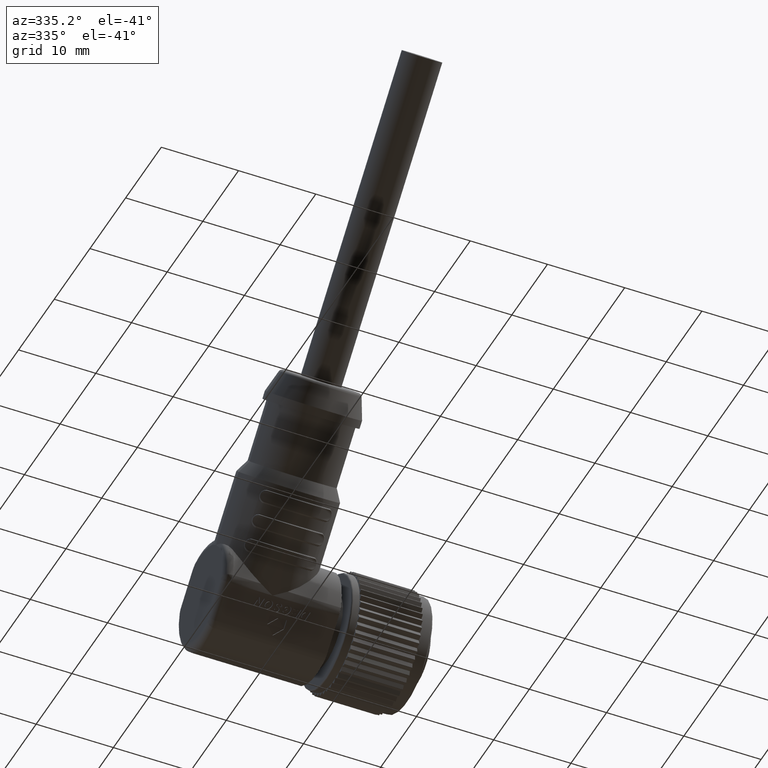
[diagram: clean part render]
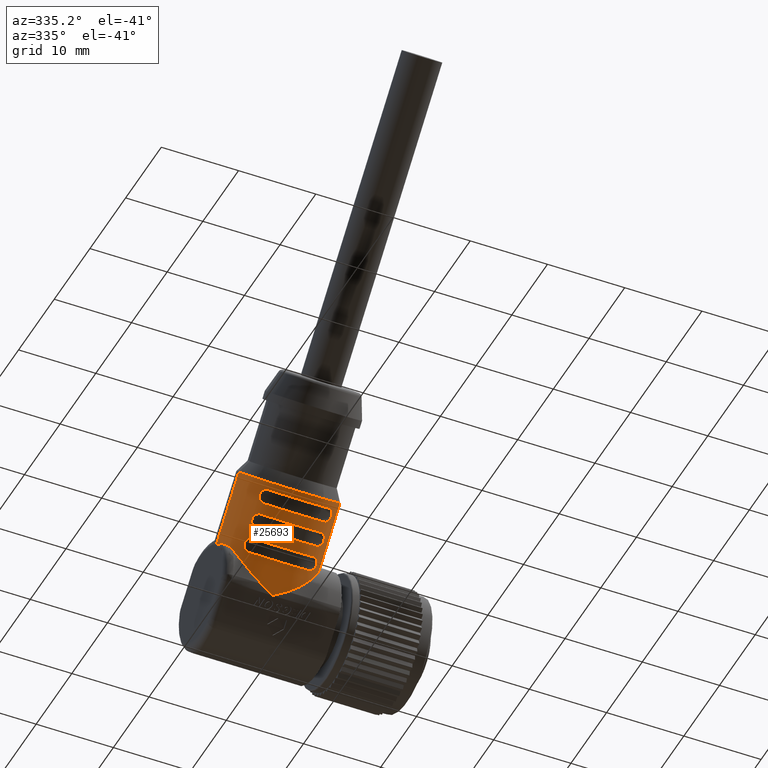
[diagram: same view with one face highlighted and labeled with its STEP entity id]
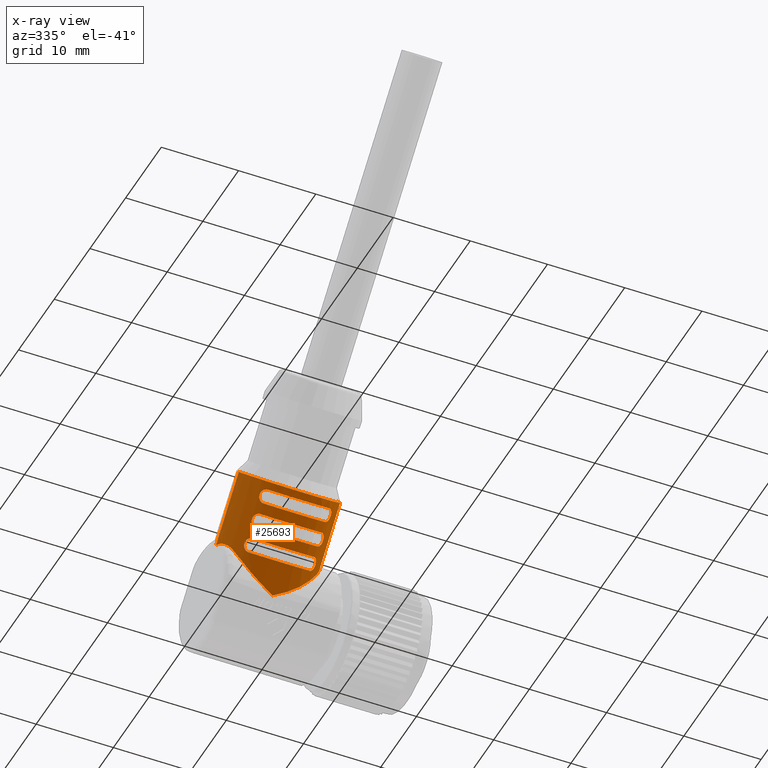
[diagram: x-ray of the same camera — body ghosted, the highlighted face saturated]
A machine part, auxiliary view. The second image highlights one B-rep face of the part: STEP entity #25693.
The next image is the same camera in x-ray: the body ghosted, the highlighted face saturated — about 0% of this face is hidden behind the body in this view.
In plain terms, the highlighted cylindrical surface (partial cylindrical patch) has radius 6.4 mm, axis along (0, -0.7071, 0.7071).
Its self-contained STEP definition (entity closure, byte-faithful):
#2044=CARTESIAN_POINT('',(-2.79E1,-4.242640687119E0,4.242640687119E0));
#2112=DIRECTION('',(0.E0,7.071067811865E-1,-7.071067811865E-1));
#2113=VECTOR('',#2112,8.E0);
#2114=CARTESIAN_POINT('',(-1.51E1,-1.060660171780E1,1.060660171780E1));
#2115=LINE('',#2114,#2113);
#2754=CARTESIAN_POINT('',(-1.976379701098E1,-6.706777559434E0,
-2.004777984785E0));
#2755=CARTESIAN_POINT('',(-1.973033856234E1,-6.712463786858E0,
-1.985755298594E0));
#2756=CARTESIAN_POINT('',(-1.966233595879E1,-6.724124667185E0,
-1.946156399835E0));
#2757=CARTESIAN_POINT('',(-1.955718266924E1,-6.742392910661E0,
-1.881949639870E0));
#2758=CARTESIAN_POINT('',(-1.944887882360E1,-6.761351361769E0,
-1.812723820941E0));
#2759=CARTESIAN_POINT('',(-1.933754368501E1,-6.780873938020E0,
-1.738347658582E0));
#2760=CARTESIAN_POINT('',(-1.922336505931E1,-6.800804039518E0,
-1.658749583493E0));
#2761=CARTESIAN_POINT('',(-1.910662043044E1,-6.820952101132E0,
-1.573941641904E0));
#2762=CARTESIAN_POINT('',(-1.898766903999E1,-6.841099862637E0,
-1.484025695513E0));
#2763=CARTESIAN_POINT('',(-1.886694269942E1,-6.861006467833E0,
-1.389196742230E0));
#2764=CARTESIAN_POINT('',(-1.874492663820E1,-6.880417517636E0,
-1.289736465142E0));
#2765=CARTESIAN_POINT('',(-1.862213625987E1,-6.899075379999E0,
-1.185999789848E0));
#2766=CARTESIAN_POINT('',(-1.849909188646E1,-6.916729589994E0,
-1.078395611047E0));
#2767=CARTESIAN_POINT('',(-1.837629576510E1,-6.933145889192E0,
-9.673652714583E-1));
#2768=CARTESIAN_POINT('',(-1.825421398133E1,-6.948113007215E0,
-8.533619134181E-1));
#2769=CARTESIAN_POINT('',(-1.813326376595E1,-6.961446923063E0,
-7.368322769946E-1));
#2770=CARTESIAN_POINT('',(-1.801380702498E1,-6.972992604571E0,
-6.182029272259E-1));
#2771=CARTESIAN_POINT('',(-1.789614941929E1,-6.982623687278E0,
-4.978714963514E-1));
#2772=CARTESIAN_POINT('',(-1.778054284768E1,-6.990240781358E0,
-3.762017329391E-1));
#2773=CARTESIAN_POINT('',(-1.766719031149E1,-6.995768932287E0,
-2.535218498986E-1));
#2774=CARTESIAN_POINT('',(-1.755625177515E1,-6.999154715492E0,
-1.301250159123E-1));
#2775=CARTESIAN_POINT('',(-1.744785031065E1,-7.000363276822E0,
-6.271289501332E-3));
#2776=CARTESIAN_POINT('',(-1.734207792223E1,-6.999375524912E0,
1.178097250432E-1));
#2777=CARTESIAN_POINT('',(-1.723900081743E1,-6.996185579647E0,
2.419158980580E-1));
#2778=CARTESIAN_POINT('',(-1.713866398342E1,-6.990798520440E0,
3.658695919302E-1));
#2779=CARTESIAN_POINT('',(-1.704109507672E1,-6.983228436707E0,
4.895148275227E-1));
#2780=CARTESIAN_POINT('',(-1.694630766091E1,-6.973496760627E0,
6.127147046613E-1));
#2781=CARTESIAN_POINT('',(-1.685430386462E1,-6.961630850028E0,
7.353491178457E-1));
#2782=CARTESIAN_POINT('',(-1.676507656609E1,-6.947662789498E0,
8.573127401697E-1));
#2783=CARTESIAN_POINT('',(-1.667861116400E1,-6.931628376421E0,
9.785132842144E-1));
#2784=CARTESIAN_POINT('',(-1.659488697655E1,-6.913566249684E0,
1.098870065599E0));
#2785=CARTESIAN_POINT('',(-1.651387858432E1,-6.893517196915E0,
1.218312468253E0));
#2786=CARTESIAN_POINT('',(-1.643555669136E1,-6.871523523800E0,
1.336778960287E0));
#2787=CARTESIAN_POINT('',(-1.635988894890E1,-6.847628536869E0,
1.454216076949E0));
#2788=CARTESIAN_POINT('',(-1.628684061225E1,-6.821876099910E0,
1.570577570572E0));
#2789=CARTESIAN_POINT('',(-1.621637509501E1,-6.794310257425E0,
1.685823657316E0));
#2790=CARTESIAN_POINT('',(-1.614845443175E1,-6.764974913375E0,
1.799920358396E0));
#2791=CARTESIAN_POINT('',(-1.608303966883E1,-6.733913557210E0,
1.912838918037E0));
#2792=CARTESIAN_POINT('',(-1.602009119752E1,-6.701169030712E0,
2.024555285489E0));
#2793=CARTESIAN_POINT('',(-1.595956903984E1,-6.666783330045E0,
2.135049651290E0));
#2794=CARTESIAN_POINT('',(-1.590143309508E1,-6.630797438156E0,
2.244306030587E0));
#2795=CARTESIAN_POINT('',(-1.584564335171E1,-6.593251181884E0,
2.352311890846E0));
#2796=CARTESIAN_POINT('',(-1.579216008060E1,-6.554183118123E0,
2.459057797457E0));
#2797=CARTESIAN_POINT('',(-1.574094397411E1,-6.513630417298E0,
2.564537151669E0));
#2798=CARTESIAN_POINT('',(-1.569195628741E1,-6.471628771411E0,
2.668745920588E0));
#2799=CARTESIAN_POINT('',(-1.564515904165E1,-6.428212393799E0,
2.771682213927E0));
#2800=CARTESIAN_POINT('',(-1.560051507056E1,-6.383413917971E0,
2.873346176132E0));
#2801=CARTESIAN_POINT('',(-1.555798813714E1,-6.337264369985E0,
2.973739730360E0));
#2802=CARTESIAN_POINT('',(-1.551754301897E1,-6.289793136532E0,
3.072866379460E0));
#2803=CARTESIAN_POINT('',(-1.547914558890E1,-6.241027946222E0,
3.170731011288E0));
#2804=CARTESIAN_POINT('',(-1.544276288519E1,-6.190994857434E0,
3.267339721385E0));
#2805=CARTESIAN_POINT('',(-1.540836317573E1,-6.139718255718E0,
3.362699643124E0));
#2806=CARTESIAN_POINT('',(-1.537591601389E1,-6.087220856003E0,
3.456818792404E0));
#2807=CARTESIAN_POINT('',(-1.534539228866E1,-6.033523710846E0,
3.549705921427E0));
#2808=CARTESIAN_POINT('',(-1.531676426995E1,-5.978646225732E0,
3.641370378621E0));
#2809=CARTESIAN_POINT('',(-1.529000564568E1,-5.922606171495E0,
3.731821988579E0));
#2810=CARTESIAN_POINT('',(-1.526509156333E1,-5.865419721198E0,
3.821070907492E0));
#2811=CARTESIAN_POINT('',(-1.524199864042E1,-5.807101426510E0,
3.909127584593E0));
#2812=CARTESIAN_POINT('',(-1.522070501132E1,-5.747664278394E0,
3.996002597381E0));
#2813=CARTESIAN_POINT('',(-1.520119036767E1,-5.687119794202E0,
4.081706473118E0));
#2814=CARTESIAN_POINT('',(-1.518343595325E1,-5.625477987538E0,
4.166249690395E0));
#2815=CARTESIAN_POINT('',(-1.516742459070E1,-5.562747424864E0,
4.249642556778E0));
#2816=CARTESIAN_POINT('',(-1.515314069568E1,-5.498935259639E0,
4.331895128747E0));
#2817=CARTESIAN_POINT('',(-1.514057029091E1,-5.434047274188E0,
4.413017127248E0));
#2818=CARTESIAN_POINT('',(-1.512970101877E1,-5.368087922890E0,
4.493017856987E0));
#2819=CARTESIAN_POINT('',(-1.512052214939E1,-5.301060384579E0,
4.571906125168E0));
#2820=CARTESIAN_POINT('',(-1.511302458969E1,-5.232966543681E0,
4.649690233133E0));
#2821=CARTESIAN_POINT('',(-1.510720089103E1,-5.163807285743E0,
4.726377657881E0));
#2822=CARTESIAN_POINT('',(-1.510304525357E1,-5.093581638373E0,
4.801975895068E0));
#2823=CARTESIAN_POINT('',(-1.510055353123E1,-5.022290177002E0,
4.876489038736E0));
#2824=CARTESIAN_POINT('',(-1.51E1,-4.974045110911E0,4.925449825701E0));
#2825=CARTESIAN_POINT('',(-1.51E1,-4.949747468306E0,4.949747468306E0));
#2909=CARTESIAN_POINT('',(-1.976379701098E1,-6.706777559434E0,
-2.004777984785E0));
#2910=CARTESIAN_POINT('',(-1.980550411572E1,-6.699689481763E0,
-2.028490416097E0));
#2911=CARTESIAN_POINT('',(-1.988949574132E1,-6.684599032467E0,
-2.075766744844E0));
#2912=CARTESIAN_POINT('',(-2.001724479847E1,-6.659193335438E0,
-2.146175520814E0));
#2913=CARTESIAN_POINT('',(-2.014660841947E1,-6.631028236034E0,
-2.215919263878E0));
#2914=CARTESIAN_POINT('',(-2.027747715006E1,-6.600115444605E0,
-2.284863685626E0));
#2915=CARTESIAN_POINT('',(-2.040972184521E1,-6.566478046236E0,
-2.352866719771E0));
#2916=CARTESIAN_POINT('',(-2.054320952279E1,-6.530147995681E0,
-2.419788256112E0));
#2917=CARTESIAN_POINT('',(-2.067779980434E1,-6.491166926219E0,
-2.485488563962E0));
#2918=CARTESIAN_POINT('',(-2.081334677049E1,-6.449585911496E0,
-2.549829811976E0));
#2919=CARTESIAN_POINT('',(-2.094969891412E1,-6.405465611347E0,
-2.612676556231E0));
#2920=CARTESIAN_POINT('',(-2.108670170737E1,-6.358875398459E0,
-2.673897298991E0));
#2921=CARTESIAN_POINT('',(-2.122419181417E1,-6.309895701025E0,
-2.733362692335E0));
#2922=CARTESIAN_POINT('',(-2.136202256916E1,-6.258607930340E0,
-2.790956071827E0));
#2923=CARTESIAN_POINT('',(-2.145398953853E1,-6.222956193772E0,
-2.828010605416E0));
#2924=CARTESIAN_POINT('',(-2.15E1,-6.204768961969E0,-2.846197837219E0));
#2926=DIRECTION('',(0.E0,-7.071067811865E-1,7.071067811865E-1));
#2927=VECTOR('',#2926,9.E0);
#2928=CARTESIAN_POINT('',(-2.79E1,-4.242640687119E0,4.242640687119E0));
#2929=LINE('',#2928,#2927);
#2930=CARTESIAN_POINT('',(-2.15E1,-1.060660171780E1,1.060660171780E1));
#2931=DIRECTION('',(0.E0,-7.071067811865E-1,7.071067811865E-1));
#2932=DIRECTION('',(-1.E0,0.E0,0.E0));
#2933=AXIS2_PLACEMENT_3D('',#2930,#2931,#2932);
#2935=CARTESIAN_POINT('',(-2.547308603672E1,-8.073341016860E0,
9.776257823275E-1));
#2936=CARTESIAN_POINT('',(-2.548044840583E1,-8.069218625942E0,
9.817481772971E-1));
#2937=CARTESIAN_POINT('',(-2.549513260892E1,-8.061183108442E0,
9.902313764185E-1));
#2938=CARTESIAN_POINT('',(-2.551705137775E1,-8.049749650971E0,
1.003678289922E0));
#2939=CARTESIAN_POINT('',(-2.553882037423E1,-8.038958550311E0,
1.017820387060E0));
#2940=CARTESIAN_POINT('',(-2.556042416951E1,-8.028817550164E0,
1.032645198070E0));
#2941=CARTESIAN_POINT('',(-2.558184086600E1,-8.019337956775E0,
1.048135698708E0));
#2942=CARTESIAN_POINT('',(-2.560305033160E1,-8.010529979350E0,
1.064274883966E0));
#2943=CARTESIAN_POINT('',(-2.562403313276E1,-8.002403490820E0,
1.081045411643E0));
#2944=CARTESIAN_POINT('',(-2.564476999257E1,-7.994968182219E0,
1.098429118830E0));
#2945=CARTESIAN_POINT('',(-2.566524208683E1,-7.988233439185E0,
1.116407270873E0));
#2946=CARTESIAN_POINT('',(-2.568543089975E1,-7.982208376800E0,
1.134960446210E0));
#2947=CARTESIAN_POINT('',(-2.570531822779E1,-7.976901812655E0,
1.154068535477E0));
#2948=CARTESIAN_POINT('',(-2.572488615718E1,-7.972322245197E0,
1.173710716332E0));
#2949=CARTESIAN_POINT('',(-2.574411704704E1,-7.968477824756E0,
1.193865428733E0));
#2950=CARTESIAN_POINT('',(-2.576299352152E1,-7.965376317586E0,
1.214510356323E0));
#2951=CARTESIAN_POINT('',(-2.578149846375E1,-7.963025065236E0,
1.235622407444E0));
#2952=CARTESIAN_POINT('',(-2.579961501555E1,-7.961430938727E0,
1.257177700741E0));
#2953=CARTESIAN_POINT('',(-2.581732658228E1,-7.960600288128E0,
1.279151555501E0));
#2954=CARTESIAN_POINT('',(-2.583461684333E1,-7.960538888952E0,
1.301518489022E0));
#2955=CARTESIAN_POINT('',(-2.585146976656E1,-7.961251886269E0,
1.324252220496E0));
#2956=CARTESIAN_POINT('',(-2.586786962694E1,-7.962743736963E0,
1.347325681914E0));
#2957=CARTESIAN_POINT('',(-2.588380102880E1,-7.965018151446E0,
1.370711037029E0));
#2958=CARTESIAN_POINT('',(-2.589924893096E1,-7.968078035754E0,
1.394379708429E0));
#2959=CARTESIAN_POINT('',(-2.591419867414E1,-7.971925435E0,1.418302412680E0));
#2960=CARTESIAN_POINT('',(-2.592863600990E1,-7.976561479113E0,
1.442449203670E0));
#2961=CARTESIAN_POINT('',(-2.594254713058E1,-7.981986331851E0,
1.466789524105E0));
#2962=CARTESIAN_POINT('',(-2.595591869941E1,-7.988199143862E0,
1.491292264419E0));
#2963=CARTESIAN_POINT('',(-2.596873787978E1,-7.995198010518E0,
1.515925828404E0));
#2964=CARTESIAN_POINT('',(-2.598099236351E1,-8.002979935176E0,
1.540658205083E0));
#2965=CARTESIAN_POINT('',(-2.599267039696E1,-8.011540798338E0,
1.565457045639E0));
#2966=CARTESIAN_POINT('',(-2.600376080431E1,-8.020875332606E0,
1.590289743348E0));
#2967=CARTESIAN_POINT('',(-2.601425300764E1,-8.030977103462E0,
1.615123515700E0));
#2968=CARTESIAN_POINT('',(-2.602413704415E1,-8.041838496450E0,
1.639925488870E0));
#2969=CARTESIAN_POINT('',(-2.603340358059E1,-8.053450710495E0,
1.664662783775E0));
#2970=CARTESIAN_POINT('',(-2.604204392282E1,-8.065803756512E0,
1.689302599291E0));
#2971=CARTESIAN_POINT('',(-2.605005002197E1,-8.078886460534E0,
1.713812293144E0));
#2972=CARTESIAN_POINT('',(-2.605741447876E1,-8.092686473702E0,
1.738159464618E0));
#2973=CARTESIAN_POINT('',(-2.606413054372E1,-8.107190285523E0,
1.762312031364E0));
#2974=CARTESIAN_POINT('',(-2.607019211395E1,-8.122383238967E0,
1.786238299557E0));
#2975=CARTESIAN_POINT('',(-2.607559372839E1,-8.138249549194E0,
1.809907031313E0));
#2976=CARTESIAN_POINT('',(-2.608033056146E1,-8.154772324861E0,
1.833287507818E0));
#2977=CARTESIAN_POINT('',(-2.608439841547E1,-8.171933590886E0,
1.856349587196E0));
#2978=CARTESIAN_POINT('',(-2.608779371245E1,-8.189714312611E0,
1.879063757747E0));
#2979=CARTESIAN_POINT('',(-2.609051348600E1,-8.208094420848E0,
1.901401186579E0));
#2980=CARTESIAN_POINT('',(-2.609255537354E1,-8.227052837720E0,
1.923333764065E0));
#2981=CARTESIAN_POINT('',(-2.609391760957E1,-8.246567503129E0,
1.944834144496E0));
#2982=CARTESIAN_POINT('',(-2.609459902024E1,-8.266615401854E0,
1.965875783390E0));
#2983=CARTESIAN_POINT('',(-2.609459901952E1,-8.287172591477E0,
1.986432971954E0));
#2984=CARTESIAN_POINT('',(-2.609391760735E1,-8.308214231223E0,
2.006480869362E0));
#2985=CARTESIAN_POINT('',(-2.609255536983E1,-8.329714612268E0,
2.025995533212E0));
#2986=CARTESIAN_POINT('',(-2.609051348082E1,-8.351647190109E0,
2.044953948299E0));
#2987=CARTESIAN_POINT('',(-2.608779370584E1,-8.373984619021E0,
2.063334054548E0));
#2988=CARTESIAN_POINT('',(-2.608439840750E1,-8.396698789364E0,
2.081114774110E0));
#2989=CARTESIAN_POINT('',(-2.608033055224E1,-8.419760868217E0,
2.098276037812E0));
#2990=CARTESIAN_POINT('',(-2.607559371805E1,-8.443141343843E0,
2.114798811002E0));
#2991=CARTESIAN_POINT('',(-2.607019210265E1,-8.466810074353E0,
2.130665118633E0));
#2992=CARTESIAN_POINT('',(-2.606413053164E1,-8.490736340962E0,
2.145858069414E0));
#2993=CARTESIAN_POINT('',(-2.605741446609E1,-8.514888905797E0,
2.160361878544E0));
#2994=CARTESIAN_POINT('',(-2.605005000895E1,-8.539236075001E0,
2.174161889003E0));
#2995=CARTESIAN_POINT('',(-2.604204390974E1,-8.563745766161E0,
2.187244590294E0));
#2996=CARTESIAN_POINT('',(-2.603340356773E1,-8.588385578577E0,
2.199597633606E0));
#2997=CARTESIAN_POINT('',(-2.602413703183E1,-8.613122869984E0,
2.211209844998E0));
#2998=CARTESIAN_POINT('',(-2.601425299621E1,-8.637924839288E0,
2.222071235448E0));
#2999=CARTESIAN_POINT('',(-2.600376079393E1,-8.662758607807E0,
2.232173004007E0));
#3000=CARTESIAN_POINT('',(-2.599267038765E1,-8.687591301951E0,
2.241507536278E0));
#3001=CARTESIAN_POINT('',(-2.598099235557E1,-8.712390138625E0,
2.250068397530E0));
#3002=CARTESIAN_POINT('',(-2.596873787389E1,-8.737122510434E0,
2.257850320195E0));
#3003=CARTESIAN_POINT('',(-2.595591869616E1,-8.761756068854E0,
2.264849184967E0));
#3004=CARTESIAN_POINT('',(-2.594254713024E1,-8.786258803673E0,
2.271061995458E0));
#3005=CARTESIAN_POINT('',(-2.592863601251E1,-8.810599118991E0,
2.276486847095E0));
#3006=CARTESIAN_POINT('',(-2.591419867981E1,-8.834745905167E0,
2.281122890484E0));
#3007=CARTESIAN_POINT('',(-2.589924893980E1,-8.858668604836E0,
2.284970289349E0));
#3008=CARTESIAN_POINT('',(-2.588380104098E1,-8.882337271800E0,
2.288030173594E0));
#3009=CARTESIAN_POINT('',(-2.586786964274E1,-8.905722622494E0,
2.290304588316E0));
#3010=CARTESIAN_POINT('',(-2.585146978620E1,-8.928796079570E0,
2.291796439566E0));
#3011=CARTESIAN_POINT('',(-2.583461686686E1,-8.951529807045E0,
2.292509437758E0));
#3012=CARTESIAN_POINT('',(-2.581732660955E1,-8.973896737128E0,
2.292448039742E0));
#3013=CARTESIAN_POINT('',(-2.579961504628E1,-8.995870589094E0,
2.291617390535E0));
#3014=CARTESIAN_POINT('',(-2.578149849754E1,-9.017425880347E0,
2.290023265574E0));
#3015=CARTESIAN_POINT('',(-2.576299355795E1,-9.038537930137E0,
2.287672014883E0));
#3016=CARTESIAN_POINT('',(-2.574411708607E1,-9.059182856606E0,
2.284570509500E0));
#3017=CARTESIAN_POINT('',(-2.572488619907E1,-9.079337567824E0,
2.280726091026E0));
#3018=CARTESIAN_POINT('',(-2.570531827233E1,-9.098979747909E0,
2.276146525641E0));
#3019=CARTESIAN_POINT('',(-2.568543094607E1,-9.118087837422E0,
2.270839963455E0));
#3020=CARTESIAN_POINT('',(-2.566524213412E1,-9.136641013820E0,
2.264814902839E0));
#3021=CARTESIAN_POINT('',(-2.564477004024E1,-9.154619167467E0,
2.258080161380E0));
#3022=CARTESIAN_POINT('',(-2.562403318054E1,-9.172002876467E0,
2.250644854226E0));
#3023=CARTESIAN_POINT('',(-2.560305037902E1,-9.188773406313E0,
2.242518366943E0));
#3024=CARTESIAN_POINT('',(-2.558184091089E1,-9.204912595231E0,
2.233710389738E0));
#3025=CARTESIAN_POINT('',(-2.556042421643E1,-9.220403096139E0,
2.224230798493E0));
#3026=CARTESIAN_POINT('',(-2.553882041210E1,-9.235227915007E0,
2.214089795305E0));
#3027=CARTESIAN_POINT('',(-2.551705141411E1,-9.249370014330E0,
2.203298694733E0));
#3028=CARTESIAN_POINT('',(-2.549513263761E1,-9.262816933909E0,
2.191865234248E0));
#3029=CARTESIAN_POINT('',(-2.548044841703E1,-9.271300143647E0,
2.183829707534E0));
#3030=CARTESIAN_POINT('',(-2.547308603672E1,-9.275422544877E0,
2.179707310345E0));
#3032=CARTESIAN_POINT('',(-2.15E1,-4.525483399594E0,4.525483399594E0));
#3033=DIRECTION('',(0.E0,7.071067811865E-1,-7.071067811865E-1));
#3034=DIRECTION('',(6.207946932381E-1,-5.543527526979E-1,-5.543527526979E-1));
#3035=AXIS2_PLACEMENT_3D('',#3032,#3033,#3034);
#3037=CARTESIAN_POINT('',(-1.752691396328E1,-9.275422544877E0,
2.179707310345E0));
#3038=CARTESIAN_POINT('',(-1.751955159429E1,-9.271300149976E0,
2.183829701194E0));
#3039=CARTESIAN_POINT('',(-1.750486739138E1,-9.262816950964E0,
2.191865218600E0));
#3040=CARTESIAN_POINT('',(-1.748294862258E1,-9.249370037493E0,
2.203298676065E0));
#3041=CARTESIAN_POINT('',(-1.746117962604E1,-9.235227940323E0,
2.214089776766E0));
#3042=CARTESIAN_POINT('',(-1.743957583069E1,-9.220403129278E0,
2.224230776950E0));
#3043=CARTESIAN_POINT('',(-1.741815913420E1,-9.204912628643E0,
2.233710370345E0));
#3044=CARTESIAN_POINT('',(-1.739694966860E1,-9.188773443395E0,
2.242518347775E0));
#3045=CARTESIAN_POINT('',(-1.737596686743E1,-9.172002915716E0,
2.250644836314E0));
#3046=CARTESIAN_POINT('',(-1.735523000761E1,-9.154619208530E0,
2.258080144924E0));
#3047=CARTESIAN_POINT('',(-1.733475791335E1,-9.136641056490E0,
2.264814887964E0));
#3048=CARTESIAN_POINT('',(-1.731456910041E1,-9.118087881150E0,
2.270839950358E0));
#3049=CARTESIAN_POINT('',(-1.729468177237E1,-9.098979791882E0,
2.276146514510E0));
#3050=CARTESIAN_POINT('',(-1.727511384297E1,-9.079337611030E0,
2.280726081974E0));
#3051=CARTESIAN_POINT('',(-1.725588295311E1,-9.059182898635E0,
2.284570502421E0));
#3052=CARTESIAN_POINT('',(-1.723700647862E1,-9.038537971038E0,
2.287672009598E0));
#3053=CARTESIAN_POINT('',(-1.721850153636E1,-9.017425919896E0,
2.290023261956E0));
#3054=CARTESIAN_POINT('',(-1.720038498455E1,-8.995870626580E0,
2.291617388472E0));
#3055=CARTESIAN_POINT('',(-1.718267341780E1,-8.973896771811E0,
2.292448039075E0));
#3056=CARTESIAN_POINT('',(-1.716538315675E1,-8.951529838285E0,
2.292509438254E0));
#3057=CARTESIAN_POINT('',(-1.714853023351E1,-8.928796106807E0,
2.291796440941E0));
#3058=CARTESIAN_POINT('',(-1.713213037312E1,-8.905722645386E0,
2.290304590250E0));
#3059=CARTESIAN_POINT('',(-1.711619897126E1,-8.882337290267E0,
2.288030175769E0));
#3060=CARTESIAN_POINT('',(-1.710075106909E1,-8.858668618859E0,
2.284970291463E0));
#3061=CARTESIAN_POINT('',(-1.708580132590E1,-8.834745914597E0,
2.281122892218E0));
#3062=CARTESIAN_POINT('',(-1.707136399014E1,-8.810599123596E0,
2.276486848104E0));
#3063=CARTESIAN_POINT('',(-1.705745286945E1,-8.786258803154E0,
2.271061995367E0));
#3064=CARTESIAN_POINT('',(-1.704408130062E1,-8.761756062839E0,
2.264849183357E0));
#3065=CARTESIAN_POINT('',(-1.703126212025E1,-8.737122498865E0,
2.257850316706E0));
#3066=CARTESIAN_POINT('',(-1.701900763653E1,-8.712390122197E0,
2.250068392053E0));
#3067=CARTESIAN_POINT('',(-1.700732960307E1,-8.687591281637E0,
2.241507528892E0));
#3068=CARTESIAN_POINT('',(-1.699623919571E1,-8.662758583909E0,
2.232172994620E0));
#3069=CARTESIAN_POINT('',(-1.698574699238E1,-8.637924811542E0,
2.222071223759E0));
#3070=CARTESIAN_POINT('',(-1.697586295586E1,-8.613122838363E0,
2.211209830767E0));
#3071=CARTESIAN_POINT('',(-1.696659641942E1,-8.588385543449E0,
2.199597616720E0));
#3072=CARTESIAN_POINT('',(-1.695795607718E1,-8.563745727925E0,
2.187244570699E0));
#3073=CARTESIAN_POINT('',(-1.694994997803E1,-8.539236034066E0,
2.174161866674E0));
#3074=CARTESIAN_POINT('',(-1.694258552124E1,-8.514888862585E0,
2.160361853502E0));
#3075=CARTESIAN_POINT('',(-1.693586945628E1,-8.490736295831E0,
2.145858041676E0));
#3076=CARTESIAN_POINT('',(-1.692980788604E1,-8.466810027630E0,
2.130665088226E0));
#3077=CARTESIAN_POINT('',(-1.692440627160E1,-8.443141295866E0,
2.114798777993E0));
#3078=CARTESIAN_POINT('',(-1.691966943853E1,-8.419760819354E0,
2.098276002321E0));
#3079=CARTESIAN_POINT('',(-1.691560158453E1,-8.396698739970E0,
2.081114736289E0));
#3080=CARTESIAN_POINT('',(-1.691220628755E1,-8.373984569412E0,
2.063334014557E0));
#3081=CARTESIAN_POINT('',(-1.690948651400E1,-8.351647140574E0,
2.044953906313E0));
#3082=CARTESIAN_POINT('',(-1.690744462646E1,-8.329714563081E0,
2.025995489433E0));
#3083=CARTESIAN_POINT('',(-1.690608239043E1,-8.308214182646E0,
2.006480824016E0));
#3084=CARTESIAN_POINT('',(-1.690540097976E1,-8.287172543747E0,
1.986432925283E0));
#3085=CARTESIAN_POINT('',(-1.690540098049E1,-8.266615355177E0,
1.965875735653E0));
#3086=CARTESIAN_POINT('',(-1.690608239265E1,-8.246567457765E0,
1.944834095898E0));
#3087=CARTESIAN_POINT('',(-1.690744463018E1,-8.227052793911E0,
1.923333714845E0));
#3088=CARTESIAN_POINT('',(-1.690948651919E1,-8.208094378821E0,
1.901401136994E0));
#3089=CARTESIAN_POINT('',(-1.691220629417E1,-8.189714272568E0,
1.879063708074E0));
#3090=CARTESIAN_POINT('',(-1.691560159252E1,-8.171933553004E0,
1.856349537722E0));
#3091=CARTESIAN_POINT('',(-1.691966944778E1,-8.154772289300E0,
1.833287458860E0));
#3092=CARTESIAN_POINT('',(-1.692440628198E1,-8.138249516108E0,
1.809906983225E0));
#3093=CARTESIAN_POINT('',(-1.692980789739E1,-8.122383208475E0,
1.786238252705E0));
#3094=CARTESIAN_POINT('',(-1.693586946841E1,-8.107190257694E0,
1.762311986087E0));
#3095=CARTESIAN_POINT('',(-1.694258553396E1,-8.092686448565E0,
1.738159421244E0));
#3096=CARTESIAN_POINT('',(-1.694994999110E1,-8.078886438107E0,
1.713812252031E0));
#3097=CARTESIAN_POINT('',(-1.695795609033E1,-8.065803736815E0,
1.689302560860E0));
#3098=CARTESIAN_POINT('',(-1.696659643234E1,-8.053450693505E0,
1.664662748434E0));
#3099=CARTESIAN_POINT('',(-1.697586296825E1,-8.041838482115E0,
1.639925457019E0));
#3100=CARTESIAN_POINT('',(-1.698574700387E1,-8.030977091669E0,
1.615123487708E0));
#3101=CARTESIAN_POINT('',(-1.699623920616E1,-8.020875323114E0,
1.590289719183E0));
#3102=CARTESIAN_POINT('',(-1.700732961244E1,-8.011540790850E0,
1.565457025040E0));
#3103=CARTESIAN_POINT('',(-1.701900764453E1,-8.002979929605E0,
1.540658188367E0));
#3104=CARTESIAN_POINT('',(-1.703126212623E1,-7.995198006941E0,
1.515925816542E0));
#3105=CARTESIAN_POINT('',(-1.704408130398E1,-7.988199142167E0,
1.491292258089E0));
#3106=CARTESIAN_POINT('',(-1.705745286993E1,-7.981986331676E0,
1.466789523240E0));
#3107=CARTESIAN_POINT('',(-1.707136398767E1,-7.976561480045E0,
1.442449207906E0));
#3108=CARTESIAN_POINT('',(-1.708580132039E1,-7.971925436666E0,
1.418302421724E0));
#3109=CARTESIAN_POINT('',(-1.710075106040E1,-7.968078037811E0,
1.394379722053E0));
#3110=CARTESIAN_POINT('',(-1.711619895923E1,-7.965018153575E0,
1.370711055089E0));
#3111=CARTESIAN_POINT('',(-1.713213035748E1,-7.962743738863E0,
1.347325704393E0));
#3112=CARTESIAN_POINT('',(-1.714853021403E1,-7.961251887624E0,
1.324252247314E0));
#3113=CARTESIAN_POINT('',(-1.716538313339E1,-7.960538889443E0,
1.301518519833E0));
#3114=CARTESIAN_POINT('',(-1.718267339071E1,-7.960600287469E0,
1.279151589748E0));
#3115=CARTESIAN_POINT('',(-1.720038495400E1,-7.961430936689E0,
1.257177737781E0));
#3116=CARTESIAN_POINT('',(-1.721850150274E1,-7.963025061661E0,
1.235622446531E0));
#3117=CARTESIAN_POINT('',(-1.723700644233E1,-7.965376312363E0,
1.214510396759E0));
#3118=CARTESIAN_POINT('',(-1.725588291420E1,-7.968477817754E0,
1.193865470311E0));
#3119=CARTESIAN_POINT('',(-1.727511380120E1,-7.972322236237E0,
1.173710759102E0));
#3120=CARTESIAN_POINT('',(-1.729468172796E1,-7.976901801636E0,
1.154068579011E0));
#3121=CARTESIAN_POINT('',(-1.731456905424E1,-7.982208363837E0,
1.134960489493E0));
#3122=CARTESIAN_POINT('',(-1.733475786620E1,-7.988233424466E0,
1.116407313098E0));
#3123=CARTESIAN_POINT('',(-1.735522996009E1,-7.994968165938E0,
1.098429159454E0));
#3124=CARTESIAN_POINT('',(-1.737596681981E1,-8.002403473107E0,
1.081045450456E0));
#3125=CARTESIAN_POINT('',(-1.739694962134E1,-8.010529960407E0,
1.064274920611E0));
#3126=CARTESIAN_POINT('',(-1.741815908947E1,-8.019337937623E0,
1.048135731706E0));
#3127=CARTESIAN_POINT('',(-1.743957578397E1,-8.028817528895E0,
1.032645230783E0));
#3128=CARTESIAN_POINT('',(-1.746117958826E1,-8.038958532077E0,
1.017820411955E0));
#3129=CARTESIAN_POINT('',(-1.748294858625E1,-8.049749632657E0,
1.003678312645E0));
#3130=CARTESIAN_POINT('',(-1.750486736269E1,-8.061183093121E0,
9.902313931174E-1));
#3131=CARTESIAN_POINT('',(-1.751955158309E1,-8.069218619738E0,
9.817481834910E-1));
#3132=CARTESIAN_POINT('',(-1.752691396328E1,-8.073341016860E0,
9.776257823275E-1));
#3134=CARTESIAN_POINT('',(-2.15E1,-5.727564927611E0,5.727564927611E0));
#3135=DIRECTION('',(0.E0,-7.071067811865E-1,7.071067811865E-1));
#3136=DIRECTION('',(-6.207946932381E-1,-5.543527526979E-1,-5.543527526979E-1));
#3137=AXIS2_PLACEMENT_3D('',#3134,#3135,#3136);
#3139=CARTESIAN_POINT('',(-2.547308603672E1,-1.019466136042E1,
3.098946125887E0));
#3140=CARTESIAN_POINT('',(-2.548044840583E1,-1.019053896950E1,
3.103068520857E0));
#3141=CARTESIAN_POINT('',(-2.549513260893E1,-1.018250345200E1,
3.111551719978E0));
#3142=CARTESIAN_POINT('',(-2.551705137775E1,-1.017106999453E1,
3.124998633482E0));
#3143=CARTESIAN_POINT('',(-2.553882037423E1,-1.016027889387E1,
3.139140730621E0));
#3144=CARTESIAN_POINT('',(-2.556042416951E1,-1.015013789372E1,
3.153965541629E0));
#3145=CARTESIAN_POINT('',(-2.558184086600E1,-1.014065830033E1,
3.169456042267E0));
#3146=CARTESIAN_POINT('',(-2.560305033160E1,-1.013185032291E1,
3.185595227526E0));
#3147=CARTESIAN_POINT('',(-2.562403313276E1,-1.012372383438E1,
3.202365755203E0));
#3148=CARTESIAN_POINT('',(-2.564476999257E1,-1.011628852578E1,
3.219749462390E0));
#3149=CARTESIAN_POINT('',(-2.566524208683E1,-1.010955378274E1,
3.237727614433E0));
#3150=CARTESIAN_POINT('',(-2.568543089975E1,-1.010352872036E1,
3.256280789769E0));
#3151=CARTESIAN_POINT('',(-2.570531822779E1,-1.009822215621E1,
3.275388879036E0));
#3152=CARTESIAN_POINT('',(-2.572488615718E1,-1.009364258876E1,
3.295031059892E0));
#3153=CARTESIAN_POINT('',(-2.574411704704E1,-1.008979816832E1,
3.315185772293E0));
#3154=CARTESIAN_POINT('',(-2.576299352152E1,-1.008669666115E1,
3.335830699883E0));
#3155=CARTESIAN_POINT('',(-2.578149846375E1,-1.008434540880E1,
3.356942751005E0));
#3156=CARTESIAN_POINT('',(-2.579961501555E1,-1.008275128229E1,
3.378498044302E0));
#3157=CARTESIAN_POINT('',(-2.581732658229E1,-1.008192063169E1,
3.400471899061E0));
#3158=CARTESIAN_POINT('',(-2.583461684333E1,-1.008185923251E1,
3.422838832581E0));
#3159=CARTESIAN_POINT('',(-2.585146976656E1,-1.008257222983E1,
3.445572564055E0));
#3160=CARTESIAN_POINT('',(-2.586786962694E1,-1.008406408052E1,
3.468646025473E0));
#3161=CARTESIAN_POINT('',(-2.588380102880E1,-1.008633849501E1,
3.492031380588E0));
#3162=CARTESIAN_POINT('',(-2.589924893096E1,-1.008939837931E1,
3.515700051989E0));
#3163=CARTESIAN_POINT('',(-2.591419867414E1,-1.009324577856E1,
3.539622756240E0));
#3164=CARTESIAN_POINT('',(-2.592863600990E1,-1.009788182267E1,
3.563769547230E0));
#3165=CARTESIAN_POINT('',(-2.594254713058E1,-1.010330667541E1,
3.588109867665E0));
#3166=CARTESIAN_POINT('',(-2.595591869941E1,-1.010951948742E1,
3.612612607980E0));
#3167=CARTESIAN_POINT('',(-2.596873787978E1,-1.011651835408E1,
3.637246171963E0));
#3168=CARTESIAN_POINT('',(-2.598099236351E1,-1.012430027874E1,
3.661978548643E0));
#3169=CARTESIAN_POINT('',(-2.599267039696E1,-1.013286114190E1,
3.686777389200E0));
#3170=CARTESIAN_POINT('',(-2.600376080431E1,-1.014219567617E1,
3.711610086909E0));
#3171=CARTESIAN_POINT('',(-2.601425300764E1,-1.015229744702E1,
3.736443859260E0));
#3172=CARTESIAN_POINT('',(-2.602413704415E1,-1.016315884001E1,
3.761245832429E0));
#3173=CARTESIAN_POINT('',(-2.603340358059E1,-1.017477105405E1,
3.785983127336E0));
#3174=CARTESIAN_POINT('',(-2.604204392282E1,-1.018712410007E1,
3.810622942851E0));
#3175=CARTESIAN_POINT('',(-2.605005002197E1,-1.020020680409E1,
3.835132636704E0));
#3176=CARTESIAN_POINT('',(-2.605741447876E1,-1.021400681726E1,
3.859479808179E0));
#3177=CARTESIAN_POINT('',(-2.606413054372E1,-1.022851062908E1,
3.883632374925E0));
#3178=CARTESIAN_POINT('',(-2.607019211396E1,-1.024370358253E1,
3.907558643117E0));
#3179=CARTESIAN_POINT('',(-2.607559372839E1,-1.025956989275E1,
3.931227374874E0));
#3180=CARTESIAN_POINT('',(-2.608033056146E1,-1.027609266842E1,
3.954607851379E0));
#3181=CARTESIAN_POINT('',(-2.608439841547E1,-1.029325393445E1,
3.977669930756E0));
#3182=CARTESIAN_POINT('',(-2.608779371245E1,-1.031103465617E1,
4.000384101307E0));
#3183=CARTESIAN_POINT('',(-2.609051348600E1,-1.032941476441E1,
4.022721530140E0));
#3184=CARTESIAN_POINT('',(-2.609255537354E1,-1.034837318128E1,
4.044654107626E0));
#3185=CARTESIAN_POINT('',(-2.609391760957E1,-1.036788784669E1,
4.066154488056E0));
#3186=CARTESIAN_POINT('',(-2.609459902024E1,-1.038793574541E1,
4.087196126950E0));
#3187=CARTESIAN_POINT('',(-2.609459901952E1,-1.040849293504E1,
4.107753315514E0));
#3188=CARTESIAN_POINT('',(-2.609391760735E1,-1.042953457478E1,
4.127801212922E0));
#3189=CARTESIAN_POINT('',(-2.609255536983E1,-1.045103495583E1,
4.147315876772E0));
#3190=CARTESIAN_POINT('',(-2.609051348082E1,-1.047296753367E1,
4.166274291859E0));
#3191=CARTESIAN_POINT('',(-2.608779370584E1,-1.049530496258E1,
4.184654398108E0));
#3192=CARTESIAN_POINT('',(-2.608439840750E1,-1.051801913292E1,
4.202435117670E0));
#3193=CARTESIAN_POINT('',(-2.608033055224E1,-1.054108121178E1,
4.219596381372E0));
#3194=CARTESIAN_POINT('',(-2.607559371805E1,-1.056446168740E1,
4.236119154562E0));
#3195=CARTESIAN_POINT('',(-2.607019210265E1,-1.058813041791E1,
4.251985462193E0));
#3196=CARTESIAN_POINT('',(-2.606413053164E1,-1.061205668452E1,
4.267178412974E0));
#3197=CARTESIAN_POINT('',(-2.605741446609E1,-1.063620924936E1,
4.281682222104E0));
#3198=CARTESIAN_POINT('',(-2.605005000895E1,-1.066055641856E1,
4.295482232563E0));
#3199=CARTESIAN_POINT('',(-2.604204390974E1,-1.068506610972E1,
4.308564933854E0));
#3200=CARTESIAN_POINT('',(-2.603340356773E1,-1.070970592214E1,
4.320917977165E0));
#3201=CARTESIAN_POINT('',(-2.602413703183E1,-1.073444321354E1,
4.332530188558E0));
#3202=CARTESIAN_POINT('',(-2.601425299621E1,-1.075924518285E1,
4.343391579007E0));
#3203=CARTESIAN_POINT('',(-2.600376079393E1,-1.078407895137E1,
4.353493347566E0));
#3204=CARTESIAN_POINT('',(-2.599267038765E1,-1.080891164551E1,
4.362827879837E0));
#3205=CARTESIAN_POINT('',(-2.598099235557E1,-1.083371048219E1,
4.371388741090E0));
#3206=CARTESIAN_POINT('',(-2.596873787388E1,-1.085844285399E1,
4.379170663755E0));
#3207=CARTESIAN_POINT('',(-2.595591869616E1,-1.088307641241E1,
4.386169528527E0));
#3208=CARTESIAN_POINT('',(-2.594254713023E1,-1.090757914723E1,
4.392382339018E0));
#3209=CARTESIAN_POINT('',(-2.592863601251E1,-1.093191946255E1,
4.397807190655E0));
#3210=CARTESIAN_POINT('',(-2.591419867981E1,-1.095606624873E1,
4.402443234044E0));
#3211=CARTESIAN_POINT('',(-2.589924893980E1,-1.097998894840E1,
4.406290632908E0));
#3212=CARTESIAN_POINT('',(-2.588380104098E1,-1.100365761536E1,
4.409350517154E0));
#3213=CARTESIAN_POINT('',(-2.586786964274E1,-1.102704296605E1,
4.411624931876E0));
#3214=CARTESIAN_POINT('',(-2.585146978620E1,-1.105011642313E1,
4.413116783125E0));
#3215=CARTESIAN_POINT('',(-2.583461686686E1,-1.107285015060E1,
4.413829781317E0));
#3216=CARTESIAN_POINT('',(-2.581732660955E1,-1.109521708069E1,
4.413768383302E0));
#3217=CARTESIAN_POINT('',(-2.579961504628E1,-1.111719093265E1,
4.412937734094E0));
#3218=CARTESIAN_POINT('',(-2.578149849754E1,-1.113874622391E1,
4.411343609134E0));
#3219=CARTESIAN_POINT('',(-2.576299355795E1,-1.115985827370E1,
4.408992358442E0));
#3220=CARTESIAN_POINT('',(-2.574411708607E1,-1.118050320017E1,
4.405890853059E0));
#3221=CARTESIAN_POINT('',(-2.572488619907E1,-1.120065791138E1,
4.402046434586E0));
#3222=CARTESIAN_POINT('',(-2.570531827233E1,-1.122030009147E1,
4.397466869201E0));
#3223=CARTESIAN_POINT('',(-2.568543094607E1,-1.123940818098E1,
4.392160307015E0));
#3224=CARTESIAN_POINT('',(-2.566524213412E1,-1.125796135738E1,
4.386135246399E0));
#3225=CARTESIAN_POINT('',(-2.564477004024E1,-1.127593951103E1,
4.379400504939E0));
#3226=CARTESIAN_POINT('',(-2.562403318054E1,-1.129332322003E1,
4.371965197785E0));
#3227=CARTESIAN_POINT('',(-2.560305037902E1,-1.131009374987E1,
4.363838710502E0));
#3228=CARTESIAN_POINT('',(-2.558184091089E1,-1.132623293879E1,
4.355030733297E0));
#3229=CARTESIAN_POINT('',(-2.556042421643E1,-1.134172343970E1,
4.345551142053E0));
#3230=CARTESIAN_POINT('',(-2.553882041210E1,-1.135654825857E1,
4.335410138864E0));
#3231=CARTESIAN_POINT('',(-2.551705141411E1,-1.137069035789E1,
4.324619038293E0));
#3232=CARTESIAN_POINT('',(-2.549513263761E1,-1.138413727747E1,
4.313185577807E0));
#3233=CARTESIAN_POINT('',(-2.548044841703E1,-1.139262048721E1,
4.305150051094E0));
#3234=CARTESIAN_POINT('',(-2.547308603672E1,-1.139674288844E1,
4.301027653904E0));
#3236=CARTESIAN_POINT('',(-2.15E1,-6.646803743154E0,6.646803743154E0));
#3237=DIRECTION('',(0.E0,7.071067811865E-1,-7.071067811865E-1));
#3238=DIRECTION('',(6.207946932381E-1,-5.543527526979E-1,-5.543527526979E-1));
#3239=AXIS2_PLACEMENT_3D('',#3236,#3237,#3238);
#3241=CARTESIAN_POINT('',(-1.752691396328E1,-1.139674288844E1,
4.301027653904E0));
#3242=CARTESIAN_POINT('',(-1.751955159416E1,-1.139262049346E1,
4.305150044826E0));
#3243=CARTESIAN_POINT('',(-1.750486739106E1,-1.138413729434E1,
4.313185562333E0));
#3244=CARTESIAN_POINT('',(-1.748294862222E1,-1.137069038083E1,
4.324619019805E0));
#3245=CARTESIAN_POINT('',(-1.746117962575E1,-1.135654828369E1,
4.335410120462E0));
#3246=CARTESIAN_POINT('',(-1.743957583048E1,-1.134172347269E1,
4.345551120606E0));
#3247=CARTESIAN_POINT('',(-1.741815913399E1,-1.132623297205E1,
4.355030713994E0));
#3248=CARTESIAN_POINT('',(-1.739694966839E1,-1.131009378679E1,
4.363838691419E0));
#3249=CARTESIAN_POINT('',(-1.737596686723E1,-1.129332325911E1,
4.371965179949E0));
#3250=CARTESIAN_POINT('',(-1.735523000742E1,-1.127593955193E1,
4.379400488550E0));
#3251=CARTESIAN_POINT('',(-1.733475791316E1,-1.125796139988E1,
4.386135231583E0));
#3252=CARTESIAN_POINT('',(-1.731456910023E1,-1.123940822454E1,
4.392160293968E0));
#3253=CARTESIAN_POINT('',(-1.729468177220E1,-1.122030013528E1,
4.397466858113E0));
#3254=CARTESIAN_POINT('',(-1.727511384281E1,-1.120065795442E1,
4.402046425570E0));
#3255=CARTESIAN_POINT('',(-1.725588295295E1,-1.118050324202E1,
4.405890846010E0));
#3256=CARTESIAN_POINT('',(-1.723700647847E1,-1.115985831443E1,
4.408992353180E0));
#3257=CARTESIAN_POINT('',(-1.721850153624E1,-1.113874626331E1,
4.411343605529E0));
#3258=CARTESIAN_POINT('',(-1.720038498445E1,-1.111719097002E1,
4.412937732038E0));
#3259=CARTESIAN_POINT('',(-1.718267341771E1,-1.109521711526E1,
4.413768382637E0));
#3260=CARTESIAN_POINT('',(-1.716538315666E1,-1.107285018174E1,
4.413829781812E0));
#3261=CARTESIAN_POINT('',(-1.714853023343E1,-1.105011645026E1,
4.413116784495E0));
#3262=CARTESIAN_POINT('',(-1.713213037305E1,-1.102704298884E1,
4.411624933801E0));
#3263=CARTESIAN_POINT('',(-1.711619897120E1,-1.100365763373E1,
4.409350519318E0));
#3264=CARTESIAN_POINT('',(-1.710075106904E1,-1.097998896233E1,
4.406290635009E0));
#3265=CARTESIAN_POINT('',(-1.708580132585E1,-1.095606625808E1,
4.402443235764E0));
#3266=CARTESIAN_POINT('',(-1.707136399010E1,-1.093191946709E1,
4.397807191650E0));
#3267=CARTESIAN_POINT('',(-1.705745286941E1,-1.090757914665E1,
4.392382338912E0));
#3268=CARTESIAN_POINT('',(-1.704408130059E1,-1.088307640634E1,
4.386169526900E0));
#3269=CARTESIAN_POINT('',(-1.703126212021E1,-1.085844284235E1,
4.379170660243E0));
#3270=CARTESIAN_POINT('',(-1.701900763649E1,-1.083371046567E1,
4.371388735583E0));
#3271=CARTESIAN_POINT('',(-1.700732960303E1,-1.080891162511E1,
4.362827872419E0));
#3272=CARTESIAN_POINT('',(-1.699623919568E1,-1.078407892740E1,
4.353493338151E0));
#3273=CARTESIAN_POINT('',(-1.698574699235E1,-1.075924515504E1,
4.343391567294E0));
#3274=CARTESIAN_POINT('',(-1.697586295585E1,-1.073444318188E1,
4.332530174306E0));
#3275=CARTESIAN_POINT('',(-1.696659641941E1,-1.070970588697E1,
4.320917960261E0));
#3276=CARTESIAN_POINT('',(-1.695795607717E1,-1.068506607146E1,
4.308564914243E0));
#3277=CARTESIAN_POINT('',(-1.694994997803E1,-1.066055637760E1,
4.295482210221E0));
#3278=CARTESIAN_POINT('',(-1.694258552124E1,-1.063620920613E1,
4.281682197051E0));
#3279=CARTESIAN_POINT('',(-1.693586945627E1,-1.061205663938E1,
4.267178385230E0));
#3280=CARTESIAN_POINT('',(-1.692980788604E1,-1.058813037119E1,
4.251985431786E0));
#3281=CARTESIAN_POINT('',(-1.692440627160E1,-1.056446163943E1,
4.236119121558E0));
#3282=CARTESIAN_POINT('',(-1.691966943853E1,-1.054108116293E1,
4.219596345891E0));
#3283=CARTESIAN_POINT('',(-1.691560158453E1,-1.051801908355E1,
4.202435079865E0));
#3284=CARTESIAN_POINT('',(-1.691220628755E1,-1.049530491300E1,
4.184654358140E0));
#3285=CARTESIAN_POINT('',(-1.690948651400E1,-1.047296748417E1,
4.166274249902E0));
#3286=CARTESIAN_POINT('',(-1.690744462646E1,-1.045103490668E1,
4.147315833029E0));
#3287=CARTESIAN_POINT('',(-1.690608239043E1,-1.042953452625E1,
4.127801167620E0));
#3288=CARTESIAN_POINT('',(-1.690540097976E1,-1.040849288736E1,
4.107753268894E0));
#3289=CARTESIAN_POINT('',(-1.690540098048E1,-1.038793569879E1,
4.087196079272E0));
#3290=CARTESIAN_POINT('',(-1.690608239265E1,-1.036788780139E1,
4.066154439525E0));
#3291=CARTESIAN_POINT('',(-1.690744463017E1,-1.034837313754E1,
4.044654058480E0));
#3292=CARTESIAN_POINT('',(-1.690948651919E1,-1.032941472245E1,
4.022721480639E0));
#3293=CARTESIAN_POINT('',(-1.691220629416E1,-1.031103461620E1,
4.000384051727E0));
#3294=CARTESIAN_POINT('',(-1.691560159250E1,-1.029325389664E1,
3.977669881383E0));
#3295=CARTESIAN_POINT('',(-1.691966944776E1,-1.027609263294E1,
3.954607802530E0));
#3296=CARTESIAN_POINT('',(-1.692440628195E1,-1.025956985975E1,
3.931227326904E0));
#3297=CARTESIAN_POINT('',(-1.692980789735E1,-1.024370355212E1,
3.907558596394E0));
#3298=CARTESIAN_POINT('',(-1.693586946837E1,-1.022851060134E1,
3.883632329785E0));
#3299=CARTESIAN_POINT('',(-1.694258553391E1,-1.021400679221E1,
3.859479764949E0));
#3300=CARTESIAN_POINT('',(-1.694994999105E1,-1.020020678175E1,
3.835132595745E0));
#3301=CARTESIAN_POINT('',(-1.695795609027E1,-1.018712408046E1,
3.810622904585E0));
#3302=CARTESIAN_POINT('',(-1.696659643228E1,-1.017477103715E1,
3.785983092168E0));
#3303=CARTESIAN_POINT('',(-1.697586296818E1,-1.016315882576E1,
3.761245800762E0));
#3304=CARTESIAN_POINT('',(-1.698574700380E1,-1.015229743531E1,
3.736443831458E0));
#3305=CARTESIAN_POINT('',(-1.699623920608E1,-1.014219566675E1,
3.711610062940E0));
#3306=CARTESIAN_POINT('',(-1.700732961235E1,-1.013286113448E1,
3.686777368796E0));
#3307=CARTESIAN_POINT('',(-1.701900764444E1,-1.012430027323E1,
3.661978532121E0));
#3308=CARTESIAN_POINT('',(-1.703126212613E1,-1.011651835056E1,
3.637246160309E0));
#3309=CARTESIAN_POINT('',(-1.704408130385E1,-1.010951948579E1,
3.612612601885E0));
#3310=CARTESIAN_POINT('',(-1.705745286978E1,-1.010330667530E1,
3.588109867064E0));
#3311=CARTESIAN_POINT('',(-1.707136398751E1,-1.009788182366E1,
3.563769551744E0));
#3312=CARTESIAN_POINT('',(-1.708580132021E1,-1.009324578028E1,
3.539622765568E0));
#3313=CARTESIAN_POINT('',(-1.710075106022E1,-1.008939838141E1,
3.515700065899E0));
#3314=CARTESIAN_POINT('',(-1.711619895904E1,-1.008633849717E1,
3.492031398936E0));
#3315=CARTESIAN_POINT('',(-1.713213035728E1,-1.008406408245E1,
3.468646048242E0));
#3316=CARTESIAN_POINT('',(-1.714853021382E1,-1.008257223120E1,
3.445572591167E0));
#3317=CARTESIAN_POINT('',(-1.716538313316E1,-1.008185923301E1,
3.422838863692E0));
#3318=CARTESIAN_POINT('',(-1.718267339047E1,-1.008192063102E1,
3.400471933610E0));
#3319=CARTESIAN_POINT('',(-1.720038495375E1,-1.008275128023E1,
3.378498081645E0));
#3320=CARTESIAN_POINT('',(-1.721850150248E1,-1.008434540519E1,
3.356942790392E0));
#3321=CARTESIAN_POINT('',(-1.723700644207E1,-1.008669665589E1,
3.335830740604E0));
#3322=CARTESIAN_POINT('',(-1.725588291395E1,-1.008979816127E1,
3.315185814138E0));
#3323=CARTESIAN_POINT('',(-1.727511380095E1,-1.009364257974E1,
3.295031102922E0));
#3324=CARTESIAN_POINT('',(-1.729468172769E1,-1.009822214513E1,
3.275388922837E0));
#3325=CARTESIAN_POINT('',(-1.731456905395E1,-1.010352870731E1,
3.256280833325E0));
#3326=CARTESIAN_POINT('',(-1.733475786590E1,-1.010955376793E1,
3.237727656928E0));
#3327=CARTESIAN_POINT('',(-1.735522995978E1,-1.011628850939E1,
3.219749503280E0));
#3328=CARTESIAN_POINT('',(-1.737596681948E1,-1.012372381655E1,
3.202365794280E0));
#3329=CARTESIAN_POINT('',(-1.739694962100E1,-1.013185030383E1,
3.185595264434E0));
#3330=CARTESIAN_POINT('',(-1.741815908913E1,-1.014065828104E1,
3.169456075518E0));
#3331=CARTESIAN_POINT('',(-1.743957578359E1,-1.015013787228E1,
3.153965574609E0));
#3332=CARTESIAN_POINT('',(-1.746117958791E1,-1.016027887547E1,
3.139140755746E0));
#3333=CARTESIAN_POINT('',(-1.748294858590E1,-1.017106997604E1,
3.124998656425E0));
#3334=CARTESIAN_POINT('',(-1.750486736240E1,-1.018250343652E1,
3.111551736850E0));
#3335=CARTESIAN_POINT('',(-1.751955158298E1,-1.019053896323E1,
3.103068527115E0));
#3336=CARTESIAN_POINT('',(-1.752691396328E1,-1.019466136042E1,
3.098946125887E0));
#3338=CARTESIAN_POINT('',(-2.15E1,-7.848885271171E0,7.848885271171E0));
#3339=DIRECTION('',(0.E0,-7.071067811865E-1,7.071067811865E-1));
#3340=DIRECTION('',(-6.207946932381E-1,-5.543527526979E-1,-5.543527526979E-1));
#3341=AXIS2_PLACEMENT_3D('',#3338,#3339,#3340);
#3343=CARTESIAN_POINT('',(-2.15E1,-8.768124086713E0,8.768124086713E0));
#3344=DIRECTION('',(0.E0,-7.071067811865E-1,7.071067811865E-1));
#3345=DIRECTION('',(-6.207946932381E-1,-5.543527526979E-1,-5.543527526979E-1));
#3346=AXIS2_PLACEMENT_3D('',#3343,#3344,#3345);
#3348=CARTESIAN_POINT('',(-1.752691396328E1,-1.231598170398E1,
5.220266469447E0));
#3349=CARTESIAN_POINT('',(-1.751955158309E1,-1.231185930686E1,
5.224388870610E0));
#3350=CARTESIAN_POINT('',(-1.750486736269E1,-1.230382378024E1,
5.232872080237E0));
#3351=CARTESIAN_POINT('',(-1.748294858625E1,-1.229239031978E1,
5.246318999765E0));
#3352=CARTESIAN_POINT('',(-1.746117958826E1,-1.228159921920E1,
5.260461099075E0));
#3353=CARTESIAN_POINT('',(-1.743957578397E1,-1.227145821601E1,
5.275285917903E0));
#3354=CARTESIAN_POINT('',(-1.741815908947E1,-1.226197862474E1,
5.290776418825E0));
#3355=CARTESIAN_POINT('',(-1.739694962134E1,-1.225317064753E1,
5.306915607730E0));
#3356=CARTESIAN_POINT('',(-1.737596681981E1,-1.224504416023E1,
5.323686137574E0));
#3357=CARTESIAN_POINT('',(-1.735522996009E1,-1.223760885306E1,
5.341069846573E0));
#3358=CARTESIAN_POINT('',(-1.733475786620E1,-1.223087411159E1,
5.359048000216E0));
#3359=CARTESIAN_POINT('',(-1.731456905424E1,-1.222484905096E1,
5.377601176612E0));
#3360=CARTESIAN_POINT('',(-1.729468172796E1,-1.221954248876E1,
5.396709266129E0));
#3361=CARTESIAN_POINT('',(-1.727511380120E1,-1.221496292336E1,
5.416351446220E0));
#3362=CARTESIAN_POINT('',(-1.725588291420E1,-1.221111850487E1,
5.436506157430E0));
#3363=CARTESIAN_POINT('',(-1.723700644233E1,-1.220801699948E1,
5.457151083877E0));
#3364=CARTESIAN_POINT('',(-1.721850150274E1,-1.220566574878E1,
5.478263133649E0));
#3365=CARTESIAN_POINT('',(-1.720038495400E1,-1.220407162381E1,
5.499818424899E0));
#3366=CARTESIAN_POINT('',(-1.718267339071E1,-1.220324097459E1,
5.521792276866E0));
#3367=CARTESIAN_POINT('',(-1.716538313339E1,-1.220317957656E1,
5.544159206952E0));
#3368=CARTESIAN_POINT('',(-1.714853021403E1,-1.220389257474E1,
5.566892934432E0));
#3369=CARTESIAN_POINT('',(-1.713213035748E1,-1.220538442598E1,
5.589966391512E0));
#3370=CARTESIAN_POINT('',(-1.711619895923E1,-1.220765884069E1,
5.613351742208E0));
#3371=CARTESIAN_POINT('',(-1.710075106040E1,-1.221071872493E1,
5.637020409173E0));
#3372=CARTESIAN_POINT('',(-1.708580132038E1,-1.221456612379E1,
5.660943108845E0));
#3373=CARTESIAN_POINT('',(-1.707136398767E1,-1.221920216716E1,
5.685089895026E0));
#3374=CARTESIAN_POINT('',(-1.705745286993E1,-1.222462701880E1,
5.709430210360E0));
#3375=CARTESIAN_POINT('',(-1.704408130398E1,-1.223083982929E1,
5.733932945210E0));
#3376=CARTESIAN_POINT('',(-1.703126212623E1,-1.223783869406E1,
5.758566503662E0));
#3377=CARTESIAN_POINT('',(-1.701900764453E1,-1.224562061672E1,
5.783298875487E0));
#3378=CARTESIAN_POINT('',(-1.700732961244E1,-1.225418147797E1,
5.808097712160E0));
#3379=CARTESIAN_POINT('',(-1.699623920616E1,-1.226351601023E1,
5.832930406304E0));
#3380=CARTESIAN_POINT('',(-1.698574700387E1,-1.227361777879E1,
5.857764174828E0));
#3381=CARTESIAN_POINT('',(-1.697586296825E1,-1.228447916923E1,
5.882566144139E0));
#3382=CARTESIAN_POINT('',(-1.696659643234E1,-1.229609138062E1,
5.907303435554E0));
#3383=CARTESIAN_POINT('',(-1.695795609033E1,-1.230844442394E1,
5.931943247981E0));
#3384=CARTESIAN_POINT('',(-1.694994999110E1,-1.232152712523E1,
5.956452939152E0));
#3385=CARTESIAN_POINT('',(-1.694258553395E1,-1.233532713569E1,
5.980800108364E0));
#3386=CARTESIAN_POINT('',(-1.693586946841E1,-1.234983094481E1,
6.004952673208E0));
#3387=CARTESIAN_POINT('',(-1.692980789739E1,-1.236502389560E1,
6.028878939825E0));
#3388=CARTESIAN_POINT('',(-1.692440628198E1,-1.238089020323E1,
6.052547670345E0));
#3389=CARTESIAN_POINT('',(-1.691966944778E1,-1.239741297642E1,
6.075928145981E0));
#3390=CARTESIAN_POINT('',(-1.691560159252E1,-1.241457424012E1,
6.098990224842E0));
#3391=CARTESIAN_POINT('',(-1.691220629417E1,-1.243235495969E1,
6.121704395194E0));
#3392=CARTESIAN_POINT('',(-1.690948651919E1,-1.245073506594E1,
6.144041824115E0));
#3393=CARTESIAN_POINT('',(-1.690744463018E1,-1.246969348103E1,
6.165974401965E0));
#3394=CARTESIAN_POINT('',(-1.690608239265E1,-1.248920814489E1,
6.187474783018E0));
#3395=CARTESIAN_POINT('',(-1.690540098048E1,-1.250925604230E1,
6.208516422773E0));
#3396=CARTESIAN_POINT('',(-1.690540097976E1,-1.252981323087E1,
6.229073612404E0));
#3397=CARTESIAN_POINT('',(-1.690608239043E1,-1.255085486977E1,
6.249121511137E0));
#3398=CARTESIAN_POINT('',(-1.690744462646E1,-1.257235525020E1,
6.268636176553E0));
#3399=CARTESIAN_POINT('',(-1.690948651400E1,-1.259428782769E1,
6.287594593433E0));
#3400=CARTESIAN_POINT('',(-1.691220628755E1,-1.261662525653E1,
6.305974701677E0));
#3401=CARTESIAN_POINT('',(-1.691560158453E1,-1.263933942709E1,
6.323755423409E0));
#3402=CARTESIAN_POINT('',(-1.691966943853E1,-1.266240150647E1,
6.340916689441E0));
#3403=CARTESIAN_POINT('',(-1.692440627160E1,-1.268578198299E1,
6.357439465113E0));
#3404=CARTESIAN_POINT('',(-1.692980788604E1,-1.270945071475E1,
6.373305775346E0));
#3405=CARTESIAN_POINT('',(-1.693586945628E1,-1.273337698295E1,
6.388498728796E0));
#3406=CARTESIAN_POINT('',(-1.694258552124E1,-1.275752954971E1,
6.403002540622E0));
#3407=CARTESIAN_POINT('',(-1.694994997803E1,-1.278187672119E1,
6.416802553794E0));
#3408=CARTESIAN_POINT('',(-1.695795607718E1,-1.280638641505E1,
6.429885257819E0));
#3409=CARTESIAN_POINT('',(-1.696659641942E1,-1.283102623057E1,
6.442238303840E0));
#3410=CARTESIAN_POINT('',(-1.697586295587E1,-1.285576352548E1,
6.453850517887E0));
#3411=CARTESIAN_POINT('',(-1.698574699238E1,-1.288056549866E1,
6.464711910879E0));
#3412=CARTESIAN_POINT('',(-1.699623919571E1,-1.290539927103E1,
6.474813681739E0));
#3413=CARTESIAN_POINT('',(-1.700732960307E1,-1.293023196876E1,
6.484148216012E0));
#3414=CARTESIAN_POINT('',(-1.701900763653E1,-1.295503080932E1,
6.492709079173E0));
#3415=CARTESIAN_POINT('',(-1.703126212025E1,-1.297976318599E1,
6.500491003825E0));
#3416=CARTESIAN_POINT('',(-1.704408130062E1,-1.300439674996E1,
6.507489870476E0));
#3417=CARTESIAN_POINT('',(-1.705745286945E1,-1.302889949027E1,
6.513702682486E0));
#3418=CARTESIAN_POINT('',(-1.707136399014E1,-1.305323981072E1,
6.519127535224E0));
#3419=CARTESIAN_POINT('',(-1.708580132590E1,-1.307738660172E1,
6.523763579337E0));
#3420=CARTESIAN_POINT('',(-1.710075106909E1,-1.310130930598E1,
6.527610978582E0));
#3421=CARTESIAN_POINT('',(-1.711619897126E1,-1.312497797739E1,
6.530670862888E0));
#3422=CARTESIAN_POINT('',(-1.713213037312E1,-1.314836333250E1,
6.532945277369E0));
#3423=CARTESIAN_POINT('',(-1.714853023351E1,-1.317143679392E1,
6.534437128060E0));
#3424=CARTESIAN_POINT('',(-1.716538315674E1,-1.319417052540E1,
6.535150125374E0));
#3425=CARTESIAN_POINT('',(-1.718267341780E1,-1.321653745893E1,
6.535088726194E0));
#3426=CARTESIAN_POINT('',(-1.720038498455E1,-1.323851131370E1,
6.534258075591E0));
#3427=CARTESIAN_POINT('',(-1.721850153636E1,-1.326006660701E1,
6.532663949076E0));
#3428=CARTESIAN_POINT('',(-1.723700647862E1,-1.328117865816E1,
6.530312696718E0));
#3429=CARTESIAN_POINT('',(-1.725588295311E1,-1.330182358575E1,
6.527211189540E0));
#3430=CARTESIAN_POINT('',(-1.727511384297E1,-1.332197829815E1,
6.523366769093E0));
#3431=CARTESIAN_POINT('',(-1.729468177237E1,-1.334162047900E1,
6.518787201630E0));
#3432=CARTESIAN_POINT('',(-1.731456910041E1,-1.336072856827E1,
6.513480637478E0));
#3433=CARTESIAN_POINT('',(-1.733475791335E1,-1.337928174361E1,
6.507455575084E0));
#3434=CARTESIAN_POINT('',(-1.735523000761E1,-1.339725989565E1,
6.500720832044E0));
#3435=CARTESIAN_POINT('',(-1.737596686743E1,-1.341464360284E1,
6.493285523434E0));
#3436=CARTESIAN_POINT('',(-1.739694966860E1,-1.343141413051E1,
6.485159034895E0));
#3437=CARTESIAN_POINT('',(-1.741815913420E1,-1.344755331576E1,
6.476351057464E0));
#3438=CARTESIAN_POINT('',(-1.743957583069E1,-1.346304381640E1,
6.466871464069E0));
#3439=CARTESIAN_POINT('',(-1.746117962603E1,-1.347786862744E1,
6.456730463886E0));
#3440=CARTESIAN_POINT('',(-1.748294862258E1,-1.349201072461E1,
6.445939363185E0));
#3441=CARTESIAN_POINT('',(-1.750486739138E1,-1.350545763808E1,
6.434505905720E0));
#3442=CARTESIAN_POINT('',(-1.751955159429E1,-1.351394083710E1,
6.426470388314E0));
#3443=CARTESIAN_POINT('',(-1.752691396328E1,-1.351806323200E1,
6.422347997464E0));
#3445=CARTESIAN_POINT('',(-2.15E1,-9.970205614730E0,9.970205614730E0));
#3446=DIRECTION('',(0.E0,7.071067811865E-1,-7.071067811865E-1));
#3447=DIRECTION('',(6.207946932381E-1,-5.543527526979E-1,-5.543527526979E-1));
#3448=AXIS2_PLACEMENT_3D('',#3445,#3446,#3447);
#3450=CARTESIAN_POINT('',(-2.547308603672E1,-1.351806323200E1,
6.422347997464E0));
#3451=CARTESIAN_POINT('',(-2.548044841691E1,-1.351394083083E1,
6.426470394588E0));
#3452=CARTESIAN_POINT('',(-2.549513263732E1,-1.350545762120E1,
6.434505921208E0));
#3453=CARTESIAN_POINT('',(-2.551705141376E1,-1.349201070167E1,
6.445939381674E0));
#3454=CARTESIAN_POINT('',(-2.553882041175E1,-1.347786860236E1,
6.456730482255E0));
#3455=CARTESIAN_POINT('',(-2.556042421605E1,-1.346304378353E1,
6.466871485440E0));
#3456=CARTESIAN_POINT('',(-2.558184091055E1,-1.344755328260E1,
6.476351076710E0));
#3457=CARTESIAN_POINT('',(-2.560305037868E1,-1.343141409370E1,
6.485159053925E0));
#3458=CARTESIAN_POINT('',(-2.562403318021E1,-1.341464356385E1,
6.493285541224E0));
#3459=CARTESIAN_POINT('',(-2.564477003993E1,-1.339725985485E1,
6.500720848392E0));
#3460=CARTESIAN_POINT('',(-2.566524213382E1,-1.337928170121E1,
6.507455589864E0));
#3461=CARTESIAN_POINT('',(-2.568543094578E1,-1.336072852482E1,
6.513480650492E0));
#3462=CARTESIAN_POINT('',(-2.570531827206E1,-1.334162043530E1,
6.518787212692E0));
#3463=CARTESIAN_POINT('',(-2.572488619881E1,-1.332197825521E1,
6.523366778090E0));
#3464=CARTESIAN_POINT('',(-2.574411708582E1,-1.330182354399E1,
6.527211196573E0));
#3465=CARTESIAN_POINT('',(-2.576299355769E1,-1.328117861754E1,
6.530312701964E0));
#3466=CARTESIAN_POINT('',(-2.578149849728E1,-1.326006656777E1,
6.532663952665E0));
#3467=CARTESIAN_POINT('',(-2.579961504602E1,-1.323851127652E1,
6.534258077637E0));
#3468=CARTESIAN_POINT('',(-2.581732660931E1,-1.321653742455E1,
6.535088726855E0));
#3469=CARTESIAN_POINT('',(-2.583461686663E1,-1.319417049447E1,
6.535150124881E0));
#3470=CARTESIAN_POINT('',(-2.585146978599E1,-1.317143676698E1,
6.534437126699E0));
#3471=CARTESIAN_POINT('',(-2.586786964254E1,-1.314836330990E1,
6.532945275459E0));
#3472=CARTESIAN_POINT('',(-2.588380104079E1,-1.312497795921E1,
6.530670860746E0));
#3473=CARTESIAN_POINT('',(-2.589924893961E1,-1.310130929224E1,
6.527610976510E0));
#3474=CARTESIAN_POINT('',(-2.591419867963E1,-1.307738659257E1,
6.523763577654E0));
#3475=CARTESIAN_POINT('',(-2.592863601235E1,-1.305323980639E1,
6.519127534273E0));
#3476=CARTESIAN_POINT('',(-2.594254713009E1,-1.302889949106E1,
6.513702682641E0));
#3477=CARTESIAN_POINT('',(-2.595591869604E1,-1.300439675621E1,
6.507489872150E0));
#3478=CARTESIAN_POINT('',(-2.596873787378E1,-1.297976319776E1,
6.500491007377E0));
#3479=CARTESIAN_POINT('',(-2.598099235548E1,-1.295503082594E1,
6.492709084714E0));
#3480=CARTESIAN_POINT('',(-2.599267038756E1,-1.293023198927E1,
6.484148223468E0));
#3481=CARTESIAN_POINT('',(-2.600376079384E1,-1.290539929512E1,
6.474813691203E0));
#3482=CARTESIAN_POINT('',(-2.601425299613E1,-1.288056552660E1,
6.464711922648E0));
#3483=CARTESIAN_POINT('',(-2.602413703176E1,-1.285576355729E1,
6.453850532201E0));
#3484=CARTESIAN_POINT('',(-2.603340356766E1,-1.283102626587E1,
6.442238320810E0));
#3485=CARTESIAN_POINT('',(-2.604204390968E1,-1.280638645344E1,
6.429885277499E0));
#3486=CARTESIAN_POINT('',(-2.605005000890E1,-1.278187676227E1,
6.416802576207E0));
#3487=CARTESIAN_POINT('',(-2.605741446605E1,-1.275752959306E1,
6.403002565748E0));
#3488=CARTESIAN_POINT('',(-2.606413053160E1,-1.273337702822E1,
6.388498756618E0));
#3489=CARTESIAN_POINT('',(-2.607019210262E1,-1.270945076160E1,
6.373305805836E0));
#3490=CARTESIAN_POINT('',(-2.607559371802E1,-1.268578203108E1,
6.357439498203E0));
#3491=CARTESIAN_POINT('',(-2.608033055222E1,-1.266240155545E1,
6.340916725011E0));
#3492=CARTESIAN_POINT('',(-2.608439840749E1,-1.263933947658E1,
6.323755461306E0));
#3493=CARTESIAN_POINT('',(-2.608779370583E1,-1.261662530623E1,
6.305974741742E0));
#3494=CARTESIAN_POINT('',(-2.609051348081E1,-1.259428787731E1,
6.287594635489E0));
#3495=CARTESIAN_POINT('',(-2.609255536982E1,-1.257235529946E1,
6.268636220398E0));
#3496=CARTESIAN_POINT('',(-2.609391760735E1,-1.255085491841E1,
6.249121556544E0));
#3497=CARTESIAN_POINT('',(-2.609459901952E1,-1.252981327865E1,
6.229073659131E0));
#3498=CARTESIAN_POINT('',(-2.609459902024E1,-1.250925608902E1,
6.208516470561E0));
#3499=CARTESIAN_POINT('',(-2.609391760957E1,-1.248920819029E1,
6.187474831662E0));
#3500=CARTESIAN_POINT('',(-2.609255537354E1,-1.246969352488E1,
6.165974451226E0));
#3501=CARTESIAN_POINT('',(-2.609051348600E1,-1.245073510800E1,
6.144041873734E0));
#3502=CARTESIAN_POINT('',(-2.608779371245E1,-1.243235499975E1,
6.121704444894E0));
#3503=CARTESIAN_POINT('',(-2.608439841547E1,-1.241457427802E1,
6.098990274336E0));
#3504=CARTESIAN_POINT('',(-2.608033056147E1,-1.239741301199E1,
6.075928194952E0));
#3505=CARTESIAN_POINT('',(-2.607559372840E1,-1.238089023632E1,
6.052547718440E0));
#3506=CARTESIAN_POINT('',(-2.607019211395E1,-1.236502392609E1,
6.028878986676E0));
#3507=CARTESIAN_POINT('',(-2.606413054372E1,-1.234983097264E1,
6.004952718474E0));
#3508=CARTESIAN_POINT('',(-2.605741447875E1,-1.233532716081E1,
5.980800151720E0));
#3509=CARTESIAN_POINT('',(-2.605005002196E1,-1.232152714764E1,
5.956452980239E0));
#3510=CARTESIAN_POINT('',(-2.604204392281E1,-1.230844444362E1,
5.931943286380E0));
#3511=CARTESIAN_POINT('',(-2.603340358057E1,-1.229609139759E1,
5.907303470855E0));
#3512=CARTESIAN_POINT('',(-2.602413704413E1,-1.228447918355E1,
5.882566175940E0));
#3513=CARTESIAN_POINT('',(-2.601425300761E1,-1.227361779056E1,
5.857764202761E0));
#3514=CARTESIAN_POINT('',(-2.600376080428E1,-1.226351601970E1,
5.832930430393E0));
#3515=CARTESIAN_POINT('',(-2.599267039692E1,-1.225418148542E1,
5.808097732666E0));
#3516=CARTESIAN_POINT('',(-2.598099236346E1,-1.224562062226E1,
5.783298892109E0));
#3517=CARTESIAN_POINT('',(-2.596873787974E1,-1.223783869761E1,
5.758566515445E0));
#3518=CARTESIAN_POINT('',(-2.595591869937E1,-1.223083983096E1,
5.733932951475E0));
#3519=CARTESIAN_POINT('',(-2.594254713055E1,-1.222462701895E1,
5.709430211160E0));
#3520=CARTESIAN_POINT('',(-2.592863600986E1,-1.221920216622E1,
5.685089890718E0));
#3521=CARTESIAN_POINT('',(-2.591419867409E1,-1.221456612210E1,
5.660943099718E0));
#3522=CARTESIAN_POINT('',(-2.589924893090E1,-1.221071872286E1,
5.637020395457E0));
#3523=CARTESIAN_POINT('',(-2.588380102873E1,-1.220765883855E1,
5.613351724049E0));
#3524=CARTESIAN_POINT('',(-2.586786962687E1,-1.220538442407E1,
5.589966368930E0));
#3525=CARTESIAN_POINT('',(-2.585146976648E1,-1.220389257338E1,
5.566892907509E0));
#3526=CARTESIAN_POINT('',(-2.583461684325E1,-1.220317957607E1,
5.544159176031E0));
#3527=CARTESIAN_POINT('',(-2.581732658219E1,-1.220324097525E1,
5.521792242506E0));
#3528=CARTESIAN_POINT('',(-2.579961501544E1,-1.220407162585E1,
5.499818387737E0));
#3529=CARTESIAN_POINT('',(-2.578149846363E1,-1.220566575237E1,
5.478263094419E0));
#3530=CARTESIAN_POINT('',(-2.576299352137E1,-1.220801700473E1,
5.457151043275E0));
#3531=CARTESIAN_POINT('',(-2.574411704688E1,-1.221111851191E1,
5.436506115678E0));
#3532=CARTESIAN_POINT('',(-2.572488615702E1,-1.221496293235E1,
5.416351403283E0));
#3533=CARTESIAN_POINT('',(-2.570531822762E1,-1.221954249982E1,
5.396709222431E0));
#3534=CARTESIAN_POINT('',(-2.568543089958E1,-1.222484906397E1,
5.377601133163E0));
#3535=CARTESIAN_POINT('',(-2.566524208664E1,-1.223087412636E1,
5.359047957824E0));
#3536=CARTESIAN_POINT('',(-2.564476999238E1,-1.223760886940E1,
5.341069805786E0));
#3537=CARTESIAN_POINT('',(-2.562403313256E1,-1.224504417801E1,
5.323686098599E0));
#3538=CARTESIAN_POINT('',(-2.560305033139E1,-1.225317066655E1,
5.306915570921E0));
#3539=CARTESIAN_POINT('',(-2.558184086580E1,-1.226197864398E1,
5.290776385674E0));
#3540=CARTESIAN_POINT('',(-2.556042416930E1,-1.227145823738E1,
5.275285885038E0));
#3541=CARTESIAN_POINT('',(-2.553882037395E1,-1.228159923757E1,
5.260461073989E0));
#3542=CARTESIAN_POINT('',(-2.551705137740E1,-1.229239033827E1,
5.246318976817E0));
#3543=CARTESIAN_POINT('',(-2.549513260861E1,-1.230382379573E1,
5.232872063350E0));
#3544=CARTESIAN_POINT('',(-2.548044840571E1,-1.231185931313E1,
5.224388864344E0));
#3545=CARTESIAN_POINT('',(-2.547308603672E1,-1.231598170398E1,
5.220266469447E0));
#3547=CARTESIAN_POINT('',(-2.15E1,-6.204768961969E0,-2.846197837219E0));
#3548=CARTESIAN_POINT('',(-2.154601044676E1,-6.222956187958E0,
-2.828010611230E0));
#3549=CARTESIAN_POINT('',(-2.163797738673E1,-6.258607913352E0,
-2.790956089712E0));
#3550=CARTESIAN_POINT('',(-2.177580809759E1,-6.309895668655E0,
-2.733362729639E0));
#3551=CARTESIAN_POINT('',(-2.191329816056E1,-6.358875352232E0,
-2.673897356858E0));
#3552=CARTESIAN_POINT('',(-2.205030091041E1,-6.405465552875E0,
-2.612676635677E0));
#3553=CARTESIAN_POINT('',(-2.218665301136E1,-6.449585842488E0,
-2.549829913832E0));
#3554=CARTESIAN_POINT('',(-2.232219993565E1,-6.491166848423E0,
-2.485488688980E0));
#3555=CARTESIAN_POINT('',(-2.245679017613E1,-6.530147910857E0,
-2.419788404802E0));
#3556=CARTESIAN_POINT('',(-2.259027781288E1,-6.566477955902E0,
-2.352866893567E0));
#3557=CARTESIAN_POINT('',(-2.272252247087E1,-6.600115351585E0,
-2.284863881509E0));
#3558=CARTESIAN_POINT('',(-2.285339115797E1,-6.631028138904E0,
-2.215919493662E0));
#3559=CARTESIAN_POINT('',(-2.298275476053E1,-6.659193247088E0,
-2.146175743633E0));
#3560=CARTESIAN_POINT('',(-2.311050358541E1,-6.684598887133E0,
-2.075767182678E0));
#3561=CARTESIAN_POINT('',(-2.319449563816E1,-6.699689480075E0,
-2.028490421745E0));
#3562=CARTESIAN_POINT('',(-2.323620275284E1,-6.706777559434E0,
-2.004777984785E0));
#3568=CARTESIAN_POINT('',(-2.69E1,-6.741763290868E0,1.883780170271E0));
#3569=CARTESIAN_POINT('',(-2.687854954427E1,-6.752178021236E0,
1.846507431132E0));
#3570=CARTESIAN_POINT('',(-2.683483193890E1,-6.772452217584E0,
1.771563736574E0));
#3571=CARTESIAN_POINT('',(-2.676677790943E1,-6.801150228430E0,
1.657997482689E0));
#3572=CARTESIAN_POINT('',(-2.669620533506E1,-6.828093718880E0,
1.543304657535E0));
#3573=CARTESIAN_POINT('',(-2.662307815740E1,-6.853239262356E0,
1.427521239298E0));
#3574=CARTESIAN_POINT('',(-2.654736071184E1,-6.876543868065E0,
1.310687178442E0));
#3575=CARTESIAN_POINT('',(-2.646901952625E1,-6.897964660989E0,
1.192849364811E0));
#3576=CARTESIAN_POINT('',(-2.638802350781E1,-6.917459434582E0,
1.074061737065E0));
#3577=CARTESIAN_POINT('',(-2.630434471235E1,-6.934987044781E0,
9.543863134983E-1));
#3578=CARTESIAN_POINT('',(-2.621795911833E1,-6.950507943649E0,
8.338941199374E-1));
#3579=CARTESIAN_POINT('',(-2.612884761117E1,-6.963984787692E0,
7.126663318377E-1));
#3580=CARTESIAN_POINT('',(-2.603699717154E1,-6.975383160450E0,
5.907955734816E-1));
#3581=CARTESIAN_POINT('',(-2.594240233590E1,-6.984672424190E0,
4.683874288674E-1));
#3582=CARTESIAN_POINT('',(-2.584506697866E1,-6.991826727996E0,
3.455621748001E-1));
#3583=CARTESIAN_POINT('',(-2.574500649476E1,-6.996826199029E0,
2.224567714087E-1));
#3584=CARTESIAN_POINT('',(-2.564225044635E1,-6.999658348288E0,
9.922710726659E-2));
#3585=CARTESIAN_POINT('',(-2.553684579020E1,-7.000319720702E0,
-2.394946021818E-2));
#3586=CARTESIAN_POINT('',(-2.542886072403E1,-6.998817820200E0,
-1.468713489235E-1));
#3587=CARTESIAN_POINT('',(-2.531838920940E1,-6.995173325386E0,
-2.693098537606E-1));
#3588=CARTESIAN_POINT('',(-2.520555612413E1,-6.989422589064E0,
-3.910063147475E-1));
#3589=CARTESIAN_POINT('',(-2.509052291960E1,-6.981620370478E0,
-5.116696383370E-1));
#3590=CARTESIAN_POINT('',(-2.497349366002E1,-6.971842705198E0,
-6.309744507365E-1));
#3591=CARTESIAN_POINT('',(-2.485472051437E1,-6.960189681348E0,
-7.485609293770E-1));
#3592=CARTESIAN_POINT('',(-2.473450830371E1,-6.946787826687E0,
-8.640366539991E-1));
#3593=CARTESIAN_POINT('',(-2.461321667844E1,-6.931791641492E0,
-9.769816816262E-1));
#3594=CARTESIAN_POINT('',(-2.449125860124E1,-6.915383721878E0,
-1.086957611876E0));
#3595=CARTESIAN_POINT('',(-2.436909369028E1,-6.897772887659E0,
-1.193521185183E0));
#3596=CARTESIAN_POINT('',(-2.424721548909E1,-6.879189863943E0,
-1.296242133348E0));
#3597=CARTESIAN_POINT('',(-2.412613367028E1,-6.859880565943E0,
-1.394723194153E0));
#3598=CARTESIAN_POINT('',(-2.400635157308E1,-6.840097250212E0,
-1.488620860711E0));
#3599=CARTESIAN_POINT('',(-2.388834183334E1,-6.820088442587E0,
-1.577663725114E0));
#3600=CARTESIAN_POINT('',(-2.377252415745E1,-6.800089033880E0,
-1.661665082791E0));
#3601=CARTESIAN_POINT('',(-2.365924706700E1,-6.780311626656E0,
-1.740528833727E0));
#3602=CARTESIAN_POINT('',(-2.354877944640E1,-6.760940773792E0,
-1.814245922911E0));
#3603=CARTESIAN_POINT('',(-2.344130301822E1,-6.742128947917E0,
-1.882888194501E0));
#3604=CARTESIAN_POINT('',(-2.333693324766E1,-6.723998969067E0,
-1.946585250937E0));
#3605=CARTESIAN_POINT('',(-2.326942276492E1,-6.712423264820E0,
-1.985890860885E0));
#3606=CARTESIAN_POINT('',(-2.323620275284E1,-6.706777559434E0,
-2.004777984785E0));
#3618=CARTESIAN_POINT('',(-2.79E1,-4.242640687119E0,4.242640687119E0));
#3619=CARTESIAN_POINT('',(-2.79E1,-4.276714394489E0,4.227873169202E0));
#3620=CARTESIAN_POINT('',(-2.789944085348E1,-4.344145390464E0,
4.198044137968E0));
#3621=CARTESIAN_POINT('',(-2.789696900049E1,-4.443126440392E0,
4.152466171978E0));
#3622=CARTESIAN_POINT('',(-2.789290776725E1,-4.539960210677E0,
4.106085016236E0));
#3623=CARTESIAN_POINT('',(-2.788730065463E1,-4.634651591617E0,
4.058936529541E0));
#3624=CARTESIAN_POINT('',(-2.788019092248E1,-4.727208196176E0,
4.011054286853E0));
#3625=CARTESIAN_POINT('',(-2.787162156746E1,-4.817637102299E0,3.962470979E0));
#3626=CARTESIAN_POINT('',(-2.786163536561E1,-4.905945416629E0,
3.913218230743E0));
#3627=CARTESIAN_POINT('',(-2.785027485934E1,-4.992140316443E0,
3.863326587363E0));
#3628=CARTESIAN_POINT('',(-2.783758236889E1,-5.076229039986E0,
3.812825552455E0));
#3629=CARTESIAN_POINT('',(-2.782359998809E1,-5.158218938799E0,
3.761743583441E0));
#3630=CARTESIAN_POINT('',(-2.780836958391E1,-5.238117486783E0,
3.710108110923E0));
#3631=CARTESIAN_POINT('',(-2.779193279286E1,-5.315932297278E0,
3.657945551883E0));
#3632=CARTESIAN_POINT('',(-2.777433101713E1,-5.391671131592E0,
3.605281326589E0));
#3633=CARTESIAN_POINT('',(-2.775560542008E1,-5.465341906499E0,
3.552139875341E0));
#3634=CARTESIAN_POINT('',(-2.773579692210E1,-5.536952690589E0,
3.498544680141E0));
#3635=CARTESIAN_POINT('',(-2.771494623536E1,-5.606511586636E0,
3.444518380341E0));
#3636=CARTESIAN_POINT('',(-2.769309378318E1,-5.674027000427E0,
3.390082588451E0));
#3637=CARTESIAN_POINT('',(-2.767027974244E1,-5.739507455546E0,
3.335258041869E0));
#3638=CARTESIAN_POINT('',(-2.764654403273E1,-5.802961622187E0,
3.280064601003E0));
#3639=CARTESIAN_POINT('',(-2.762192631737E1,-5.864398300114E0,
3.224521279881E0));
#3640=CARTESIAN_POINT('',(-2.759646600320E1,-5.923826410836E0,
3.168646270730E0));
#3641=CARTESIAN_POINT('',(-2.757020224097E1,-5.981254988992E0,
3.112456968806E0));
#3642=CARTESIAN_POINT('',(-2.754317392792E1,-6.036693170921E0,
3.055970000312E0));
#3643=CARTESIAN_POINT('',(-2.751541971109E1,-6.090150184370E0,
2.999201249885E0));
#3644=CARTESIAN_POINT('',(-2.748697799185E1,-6.141635337781E0,
2.942165889216E0));
#3645=CARTESIAN_POINT('',(-2.745788693152E1,-6.191158010452E0,
2.884878405932E0));
#3646=CARTESIAN_POINT('',(-2.742818445531E1,-6.238727646542E0,
2.827352628095E0));
#3647=CARTESIAN_POINT('',(-2.739790826850E1,-6.284353733646E0,
2.769601770522E0));
#3648=CARTESIAN_POINT('',(-2.736709584183E1,-6.328045826483E0,
2.711638421893E0));
#3649=CARTESIAN_POINT('',(-2.733578451237E1,-6.369813416864E0,
2.653474745912E0));
#3650=CARTESIAN_POINT('',(-2.730401136720E1,-6.409666111532E0,
2.595122273742E0));
#3651=CARTESIAN_POINT('',(-2.727181330531E1,-6.447613543561E0,
2.536592035268E0));
#3652=CARTESIAN_POINT('',(-2.723922705424E1,-6.483665364589E0,
2.477894600272E0));
#3653=CARTESIAN_POINT('',(-2.720628918162E1,-6.517831243343E0,
2.419040110560E0));
#3654=CARTESIAN_POINT('',(-2.717303610782E1,-6.550120865212E0,
2.360038313642E0));
#3655=CARTESIAN_POINT('',(-2.713950412157E1,-6.580543930405E0,
2.300898601856E0));
#3656=CARTESIAN_POINT('',(-2.710572939746E1,-6.609110154109E0,
2.241630054848E0));
#3657=CARTESIAN_POINT('',(-2.707174800575E1,-6.635829272716E0,
2.182241469085E0));
#3658=CARTESIAN_POINT('',(-2.703759594958E1,-6.660711039717E0,
2.122741435862E0));
#3659=CARTESIAN_POINT('',(-2.700330909255E1,-6.683765275458E0,
2.063138229921E0));
#3660=CARTESIAN_POINT('',(-2.696892350423E1,-6.705001717806E0,
2.003440425706E0));
#3661=CARTESIAN_POINT('',(-2.693447423262E1,-6.724430634544E0,
1.943654781998E0));
#3662=CARTESIAN_POINT('',(-2.691149142671E1,-6.736183917068E0,
1.903747902209E0));
#3663=CARTESIAN_POINT('',(-2.69E1,-6.741763290868E0,1.883780170271E0));
#21756=CARTESIAN_POINT('',(-2.79E1,-1.060660171780E1,1.060660171780E1));
#21757=VERTEX_POINT('',#21756);
#21766=CARTESIAN_POINT('',(-1.51E1,-1.060660171780E1,1.060660171780E1));
#21767=VERTEX_POINT('',#21766);
#21768=CARTESIAN_POINT('',(-1.51E1,-4.949747468306E0,4.949747468306E0));
#21769=VERTEX_POINT('',#21768);
#21770=VERTEX_POINT('',#2935);
#21771=VERTEX_POINT('',#3030);
#21772=CARTESIAN_POINT('',(-1.752691396328E1,-9.275422544877E0,
2.179707310345E0));
#21773=VERTEX_POINT('',#21772);
#21774=VERTEX_POINT('',#3132);
#21775=VERTEX_POINT('',#3139);
#21776=VERTEX_POINT('',#3234);
#21777=CARTESIAN_POINT('',(-1.752691396328E1,-1.139674288844E1,
4.301027653904E0));
#21778=VERTEX_POINT('',#21777);
#21779=VERTEX_POINT('',#3336);
#21789=VERTEX_POINT('',#2044);
#21790=VERTEX_POINT('',#3663);
#21807=CARTESIAN_POINT('',(-2.15E1,-6.204768961969E0,-2.846197837219E0));
#21808=VERTEX_POINT('',#21807);
#21809=CARTESIAN_POINT('',(-1.976379701098E1,-6.706777559434E0,
-2.004777984785E0));
#21810=VERTEX_POINT('',#21809);
#21812=CARTESIAN_POINT('',(-2.323620275284E1,-6.706777559434E0,
-2.004777984785E0));
#21814=VERTEX_POINT('',#21812);
#21851=CARTESIAN_POINT('',(-2.547308603672E1,-1.231598170398E1,
5.220266469447E0));
#21852=CARTESIAN_POINT('',(-1.752691396328E1,-1.231598170398E1,
5.220266469447E0));
#21853=VERTEX_POINT('',#21851);
#21854=VERTEX_POINT('',#21852);
#21855=VERTEX_POINT('',#3443);
#21856=CARTESIAN_POINT('',(-2.547308603672E1,-1.351806323200E1,
6.422347997464E0));
#21857=VERTEX_POINT('',#21856);
#25644=CARTESIAN_POINT('',(-2.15E1,9.899494936612E-1,-9.899494936612E-1));
#25645=DIRECTION('',(0.E0,-7.071067811865E-1,7.071067811865E-1));
#25646=DIRECTION('',(1.E0,0.E0,0.E0));
#25647=AXIS2_PLACEMENT_3D('',#25644,#25645,#25646);
#25648=CYLINDRICAL_SURFACE('',#25647,6.4E0);
#25649=ORIENTED_EDGE('',*,*,#25623,.F.);
#25650=ORIENTED_EDGE('',*,*,#25638,.T.);
#25652=ORIENTED_EDGE('',*,*,#25651,.T.);
#25654=ORIENTED_EDGE('',*,*,#25653,.F.);
#25656=ORIENTED_EDGE('',*,*,#25655,.F.);
#25657=ORIENTED_EDGE('',*,*,#25567,.T.);
#25659=ORIENTED_EDGE('',*,*,#25658,.T.);
#25660=ORIENTED_EDGE('',*,*,#25563,.T.);
#25661=EDGE_LOOP('',(#25649,#25650,#25652,#25654,#25656,#25657,#25659,#25660));
#25662=FACE_OUTER_BOUND('',#25661,.F.);
#25664=ORIENTED_EDGE('',*,*,#25663,.F.);
#25666=ORIENTED_EDGE('',*,*,#25665,.F.);
#25668=ORIENTED_EDGE('',*,*,#25667,.F.);
#25670=ORIENTED_EDGE('',*,*,#25669,.F.);
#25671=EDGE_LOOP('',(#25664,#25666,#25668,#25670));
#25672=FACE_BOUND('',#25671,.F.);
#25674=ORIENTED_EDGE('',*,*,#25673,.F.);
#25676=ORIENTED_EDGE('',*,*,#25675,.F.);
#25678=ORIENTED_EDGE('',*,*,#25677,.F.);
#25680=ORIENTED_EDGE('',*,*,#25679,.F.);
#25681=EDGE_LOOP('',(#25674,#25676,#25678,#25680));
#25682=FACE_BOUND('',#25681,.F.);
#25684=ORIENTED_EDGE('',*,*,#25683,.T.);
#25686=ORIENTED_EDGE('',*,*,#25685,.T.);
#25688=ORIENTED_EDGE('',*,*,#25687,.T.);
#25690=ORIENTED_EDGE('',*,*,#25689,.T.);
#25691=EDGE_LOOP('',(#25684,#25686,#25688,#25690));
#25692=FACE_BOUND('',#25691,.F.);
#25693=ADVANCED_FACE('',(#25662,#25672,#25682,#25692),#25648,.T.);
#2826=B_SPLINE_CURVE_WITH_KNOTS('',3,(#2754,#2755,#2756,#2757,#2758,#2759,#2760,
#2761,#2762,#2763,#2764,#2765,#2766,#2767,#2768,#2769,#2770,#2771,#2772,#2773,
#2774,#2775,#2776,#2777,#2778,#2779,#2780,#2781,#2782,#2783,#2784,#2785,#2786,
#2787,#2788,#2789,#2790,#2791,#2792,#2793,#2794,#2795,#2796,#2797,#2798,#2799,
#2800,#2801,#2802,#2803,#2804,#2805,#2806,#2807,#2808,#2809,#2810,#2811,#2812,
#2813,#2814,#2815,#2816,#2817,#2818,#2819,#2820,#2821,#2822,#2823,#2824,#2825),
.UNSPECIFIED.,.F.,.F.,(4,1,1,1,1,1,1,1,1,1,1,1,1,1,1,1,1,1,1,1,1,1,1,1,1,1,1,1,
1,1,1,1,1,1,1,1,1,1,1,1,1,1,1,1,1,1,1,1,1,1,1,1,1,1,1,1,1,1,1,1,1,1,1,1,1,1,1,1,
1,4),(0.E0,1.449275362319E-2,2.898550724638E-2,4.347826086957E-2,
5.797101449275E-2,7.246376811594E-2,8.695652173913E-2,1.014492753623E-1,
1.159420289855E-1,1.304347826087E-1,1.449275362319E-1,1.594202898551E-1,
1.739130434783E-1,1.884057971014E-1,2.028985507246E-1,2.173913043478E-1,
2.318840579710E-1,2.463768115942E-1,2.608695652174E-1,2.753623188406E-1,
2.898550724638E-1,3.043478260870E-1,3.188405797101E-1,3.333333333333E-1,
3.478260869565E-1,3.623188405797E-1,3.768115942029E-1,3.913043478261E-1,
4.057971014493E-1,4.202898550725E-1,4.347826086957E-1,4.492753623188E-1,
4.637681159420E-1,4.782608695652E-1,4.927536231884E-1,5.072463768116E-1,
5.217391304348E-1,5.362318840580E-1,5.507246376812E-1,5.652173913043E-1,
5.797101449275E-1,5.942028985507E-1,6.086956521739E-1,6.231884057971E-1,
6.376811594203E-1,6.521739130435E-1,6.666666666667E-1,6.811594202899E-1,
6.956521739130E-1,7.101449275362E-1,7.246376811594E-1,7.391304347826E-1,
7.536231884058E-1,7.681159420290E-1,7.826086956522E-1,7.971014492754E-1,
8.115942028986E-1,8.260869565217E-1,8.405797101449E-1,8.550724637681E-1,
8.695652173913E-1,8.840579710145E-1,8.985507246377E-1,9.130434782609E-1,
9.275362318841E-1,9.420289855072E-1,9.565217391304E-1,9.710144927536E-1,
9.855072463768E-1,1.E0),.UNSPECIFIED.);
#2925=B_SPLINE_CURVE_WITH_KNOTS('',3,(#2909,#2910,#2911,#2912,#2913,#2914,#2915,
#2916,#2917,#2918,#2919,#2920,#2921,#2922,#2923,#2924),.UNSPECIFIED.,.F.,.F.,(4,
1,1,1,1,1,1,1,1,1,1,1,1,4),(0.E0,7.692307692308E-2,1.538461538462E-1,
2.307692307692E-1,3.076923076923E-1,3.846153846154E-1,4.615384615385E-1,
5.384615384615E-1,6.153846153846E-1,6.923076923077E-1,7.692307692308E-1,
8.461538461538E-1,9.230769230769E-1,1.E0),.UNSPECIFIED.);
#2934=CIRCLE('',#2933,6.4E0);
#3031=B_SPLINE_CURVE_WITH_KNOTS('',3,(#2935,#2936,#2937,#2938,#2939,#2940,#2941,
#2942,#2943,#2944,#2945,#2946,#2947,#2948,#2949,#2950,#2951,#2952,#2953,#2954,
#2955,#2956,#2957,#2958,#2959,#2960,#2961,#2962,#2963,#2964,#2965,#2966,#2967,
#2968,#2969,#2970,#2971,#2972,#2973,#2974,#2975,#2976,#2977,#2978,#2979,#2980,
#2981,#2982,#2983,#2984,#2985,#2986,#2987,#2988,#2989,#2990,#2991,#2992,#2993,
#2994,#2995,#2996,#2997,#2998,#2999,#3000,#3001,#3002,#3003,#3004,#3005,#3006,
#3007,#3008,#3009,#3010,#3011,#3012,#3013,#3014,#3015,#3016,#3017,#3018,#3019,
#3020,#3021,#3022,#3023,#3024,#3025,#3026,#3027,#3028,#3029,#3030),
.UNSPECIFIED.,.F.,.F.,(4,1,1,1,1,1,1,1,1,1,1,1,1,1,1,1,1,1,1,1,1,1,1,1,1,1,1,1,
1,1,1,1,1,1,1,1,1,1,1,1,1,1,1,1,1,1,1,1,1,1,1,1,1,1,1,1,1,1,1,1,1,1,1,1,1,1,1,1,
1,1,1,1,1,1,1,1,1,1,1,1,1,1,1,1,1,1,1,1,1,1,1,1,1,4),(0.E0,1.075268817204E-2,
2.150537634409E-2,3.225806451613E-2,4.301075268817E-2,5.376344086022E-2,
6.451612903226E-2,7.526881720430E-2,8.602150537634E-2,9.677419354839E-2,
1.075268817204E-1,1.182795698925E-1,1.290322580645E-1,1.397849462366E-1,
1.505376344086E-1,1.612903225806E-1,1.720430107527E-1,1.827956989247E-1,
1.935483870968E-1,2.043010752688E-1,2.150537634409E-1,2.258064516129E-1,
2.365591397849E-1,2.473118279570E-1,2.580645161290E-1,2.688172043011E-1,
2.795698924731E-1,2.903225806452E-1,3.010752688172E-1,3.118279569892E-1,
3.225806451613E-1,3.333333333333E-1,3.440860215054E-1,3.548387096774E-1,
3.655913978495E-1,3.763440860215E-1,3.870967741935E-1,3.978494623656E-1,
4.086021505376E-1,4.193548387097E-1,4.301075268817E-1,4.408602150538E-1,
4.516129032258E-1,4.623655913978E-1,4.731182795699E-1,4.838709677419E-1,
4.946236559140E-1,5.053763440860E-1,5.161290322581E-1,5.268817204301E-1,
5.376344086022E-1,5.483870967742E-1,5.591397849462E-1,5.698924731183E-1,
5.806451612903E-1,5.913978494624E-1,6.021505376344E-1,6.129032258065E-1,
6.236559139785E-1,6.344086021505E-1,6.451612903226E-1,6.559139784946E-1,
6.666666666667E-1,6.774193548387E-1,6.881720430108E-1,6.989247311828E-1,
7.096774193548E-1,7.204301075269E-1,7.311827956989E-1,7.419354838710E-1,
7.526881720430E-1,7.634408602151E-1,7.741935483871E-1,7.849462365591E-1,
7.956989247312E-1,8.064516129032E-1,8.172043010753E-1,8.279569892473E-1,
8.387096774194E-1,8.494623655914E-1,8.602150537634E-1,8.709677419355E-1,
8.817204301075E-1,8.924731182796E-1,9.032258064516E-1,9.139784946237E-1,
9.247311827957E-1,9.354838709677E-1,9.462365591398E-1,9.569892473118E-1,
9.677419354839E-1,9.784946236559E-1,9.892473118280E-1,1.E0),.UNSPECIFIED.);
#3036=CIRCLE('',#3035,6.4E0);
#3133=B_SPLINE_CURVE_WITH_KNOTS('',3,(#3037,#3038,#3039,#3040,#3041,#3042,#3043,
#3044,#3045,#3046,#3047,#3048,#3049,#3050,#3051,#3052,#3053,#3054,#3055,#3056,
#3057,#3058,#3059,#3060,#3061,#3062,#3063,#3064,#3065,#3066,#3067,#3068,#3069,
#3070,#3071,#3072,#3073,#3074,#3075,#3076,#3077,#3078,#3079,#3080,#3081,#3082,
#3083,#3084,#3085,#3086,#3087,#3088,#3089,#3090,#3091,#3092,#3093,#3094,#3095,
#3096,#3097,#3098,#3099,#3100,#3101,#3102,#3103,#3104,#3105,#3106,#3107,#3108,
#3109,#3110,#3111,#3112,#3113,#3114,#3115,#3116,#3117,#3118,#3119,#3120,#3121,
#3122,#3123,#3124,#3125,#3126,#3127,#3128,#3129,#3130,#3131,#3132),
.UNSPECIFIED.,.F.,.F.,(4,1,1,1,1,1,1,1,1,1,1,1,1,1,1,1,1,1,1,1,1,1,1,1,1,1,1,1,
1,1,1,1,1,1,1,1,1,1,1,1,1,1,1,1,1,1,1,1,1,1,1,1,1,1,1,1,1,1,1,1,1,1,1,1,1,1,1,1,
1,1,1,1,1,1,1,1,1,1,1,1,1,1,1,1,1,1,1,1,1,1,1,1,1,4),(0.E0,1.075268817204E-2,
2.150537634409E-2,3.225806451613E-2,4.301075268817E-2,5.376344086022E-2,
6.451612903226E-2,7.526881720430E-2,8.602150537634E-2,9.677419354839E-2,
1.075268817204E-1,1.182795698925E-1,1.290322580645E-1,1.397849462366E-1,
1.505376344086E-1,1.612903225806E-1,1.720430107527E-1,1.827956989247E-1,
1.935483870968E-1,2.043010752688E-1,2.150537634409E-1,2.258064516129E-1,
2.365591397849E-1,2.473118279570E-1,2.580645161290E-1,2.688172043011E-1,
2.795698924731E-1,2.903225806452E-1,3.010752688172E-1,3.118279569892E-1,
3.225806451613E-1,3.333333333333E-1,3.440860215054E-1,3.548387096774E-1,
3.655913978495E-1,3.763440860215E-1,3.870967741935E-1,3.978494623656E-1,
4.086021505376E-1,4.193548387097E-1,4.301075268817E-1,4.408602150538E-1,
4.516129032258E-1,4.623655913978E-1,4.731182795699E-1,4.838709677419E-1,
4.946236559140E-1,5.053763440860E-1,5.161290322581E-1,5.268817204301E-1,
5.376344086022E-1,5.483870967742E-1,5.591397849462E-1,5.698924731183E-1,
5.806451612903E-1,5.913978494624E-1,6.021505376344E-1,6.129032258065E-1,
6.236559139785E-1,6.344086021505E-1,6.451612903226E-1,6.559139784946E-1,
6.666666666667E-1,6.774193548387E-1,6.881720430108E-1,6.989247311828E-1,
7.096774193548E-1,7.204301075269E-1,7.311827956989E-1,7.419354838710E-1,
7.526881720430E-1,7.634408602151E-1,7.741935483871E-1,7.849462365591E-1,
7.956989247312E-1,8.064516129032E-1,8.172043010753E-1,8.279569892473E-1,
8.387096774194E-1,8.494623655914E-1,8.602150537634E-1,8.709677419355E-1,
8.817204301075E-1,8.924731182796E-1,9.032258064516E-1,9.139784946237E-1,
9.247311827957E-1,9.354838709677E-1,9.462365591398E-1,9.569892473118E-1,
9.677419354839E-1,9.784946236559E-1,9.892473118280E-1,1.E0),.UNSPECIFIED.);
#3138=CIRCLE('',#3137,6.4E0);
#3235=B_SPLINE_CURVE_WITH_KNOTS('',3,(#3139,#3140,#3141,#3142,#3143,#3144,#3145,
#3146,#3147,#3148,#3149,#3150,#3151,#3152,#3153,#3154,#3155,#3156,#3157,#3158,
#3159,#3160,#3161,#3162,#3163,#3164,#3165,#3166,#3167,#3168,#3169,#3170,#3171,
#3172,#3173,#3174,#3175,#3176,#3177,#3178,#3179,#3180,#3181,#3182,#3183,#3184,
#3185,#3186,#3187,#3188,#3189,#3190,#3191,#3192,#3193,#3194,#3195,#3196,#3197,
#3198,#3199,#3200,#3201,#3202,#3203,#3204,#3205,#3206,#3207,#3208,#3209,#3210,
#3211,#3212,#3213,#3214,#3215,#3216,#3217,#3218,#3219,#3220,#3221,#3222,#3223,
#3224,#3225,#3226,#3227,#3228,#3229,#3230,#3231,#3232,#3233,#3234),
.UNSPECIFIED.,.F.,.F.,(4,1,1,1,1,1,1,1,1,1,1,1,1,1,1,1,1,1,1,1,1,1,1,1,1,1,1,1,
1,1,1,1,1,1,1,1,1,1,1,1,1,1,1,1,1,1,1,1,1,1,1,1,1,1,1,1,1,1,1,1,1,1,1,1,1,1,1,1,
1,1,1,1,1,1,1,1,1,1,1,1,1,1,1,1,1,1,1,1,1,1,1,1,1,4),(0.E0,1.075268817204E-2,
2.150537634409E-2,3.225806451613E-2,4.301075268817E-2,5.376344086022E-2,
6.451612903226E-2,7.526881720430E-2,8.602150537634E-2,9.677419354839E-2,
1.075268817204E-1,1.182795698925E-1,1.290322580645E-1,1.397849462366E-1,
1.505376344086E-1,1.612903225806E-1,1.720430107527E-1,1.827956989247E-1,
1.935483870968E-1,2.043010752688E-1,2.150537634409E-1,2.258064516129E-1,
2.365591397849E-1,2.473118279570E-1,2.580645161290E-1,2.688172043011E-1,
2.795698924731E-1,2.903225806452E-1,3.010752688172E-1,3.118279569892E-1,
3.225806451613E-1,3.333333333333E-1,3.440860215054E-1,3.548387096774E-1,
3.655913978495E-1,3.763440860215E-1,3.870967741935E-1,3.978494623656E-1,
4.086021505376E-1,4.193548387097E-1,4.301075268817E-1,4.408602150538E-1,
4.516129032258E-1,4.623655913978E-1,4.731182795699E-1,4.838709677419E-1,
4.946236559140E-1,5.053763440860E-1,5.161290322581E-1,5.268817204301E-1,
5.376344086022E-1,5.483870967742E-1,5.591397849462E-1,5.698924731183E-1,
5.806451612903E-1,5.913978494624E-1,6.021505376344E-1,6.129032258065E-1,
6.236559139785E-1,6.344086021505E-1,6.451612903226E-1,6.559139784946E-1,
6.666666666667E-1,6.774193548387E-1,6.881720430108E-1,6.989247311828E-1,
7.096774193548E-1,7.204301075269E-1,7.311827956989E-1,7.419354838710E-1,
7.526881720430E-1,7.634408602151E-1,7.741935483871E-1,7.849462365591E-1,
7.956989247312E-1,8.064516129032E-1,8.172043010753E-1,8.279569892473E-1,
8.387096774194E-1,8.494623655914E-1,8.602150537634E-1,8.709677419355E-1,
8.817204301075E-1,8.924731182796E-1,9.032258064516E-1,9.139784946237E-1,
9.247311827957E-1,9.354838709677E-1,9.462365591398E-1,9.569892473118E-1,
9.677419354839E-1,9.784946236559E-1,9.892473118280E-1,1.E0),.UNSPECIFIED.);
#3240=CIRCLE('',#3239,6.4E0);
#3337=B_SPLINE_CURVE_WITH_KNOTS('',3,(#3241,#3242,#3243,#3244,#3245,#3246,#3247,
#3248,#3249,#3250,#3251,#3252,#3253,#3254,#3255,#3256,#3257,#3258,#3259,#3260,
#3261,#3262,#3263,#3264,#3265,#3266,#3267,#3268,#3269,#3270,#3271,#3272,#3273,
#3274,#3275,#3276,#3277,#3278,#3279,#3280,#3281,#3282,#3283,#3284,#3285,#3286,
#3287,#3288,#3289,#3290,#3291,#3292,#3293,#3294,#3295,#3296,#3297,#3298,#3299,
#3300,#3301,#3302,#3303,#3304,#3305,#3306,#3307,#3308,#3309,#3310,#3311,#3312,
#3313,#3314,#3315,#3316,#3317,#3318,#3319,#3320,#3321,#3322,#3323,#3324,#3325,
#3326,#3327,#3328,#3329,#3330,#3331,#3332,#3333,#3334,#3335,#3336),
.UNSPECIFIED.,.F.,.F.,(4,1,1,1,1,1,1,1,1,1,1,1,1,1,1,1,1,1,1,1,1,1,1,1,1,1,1,1,
1,1,1,1,1,1,1,1,1,1,1,1,1,1,1,1,1,1,1,1,1,1,1,1,1,1,1,1,1,1,1,1,1,1,1,1,1,1,1,1,
1,1,1,1,1,1,1,1,1,1,1,1,1,1,1,1,1,1,1,1,1,1,1,1,1,4),(0.E0,1.075268817204E-2,
2.150537634409E-2,3.225806451613E-2,4.301075268817E-2,5.376344086022E-2,
6.451612903226E-2,7.526881720430E-2,8.602150537634E-2,9.677419354839E-2,
1.075268817204E-1,1.182795698925E-1,1.290322580645E-1,1.397849462366E-1,
1.505376344086E-1,1.612903225806E-1,1.720430107527E-1,1.827956989247E-1,
1.935483870968E-1,2.043010752688E-1,2.150537634409E-1,2.258064516129E-1,
2.365591397849E-1,2.473118279570E-1,2.580645161290E-1,2.688172043011E-1,
2.795698924731E-1,2.903225806452E-1,3.010752688172E-1,3.118279569892E-1,
3.225806451613E-1,3.333333333333E-1,3.440860215054E-1,3.548387096774E-1,
3.655913978495E-1,3.763440860215E-1,3.870967741935E-1,3.978494623656E-1,
4.086021505376E-1,4.193548387097E-1,4.301075268817E-1,4.408602150538E-1,
4.516129032258E-1,4.623655913978E-1,4.731182795699E-1,4.838709677419E-1,
4.946236559140E-1,5.053763440860E-1,5.161290322581E-1,5.268817204301E-1,
5.376344086022E-1,5.483870967742E-1,5.591397849462E-1,5.698924731183E-1,
5.806451612903E-1,5.913978494624E-1,6.021505376344E-1,6.129032258065E-1,
6.236559139785E-1,6.344086021505E-1,6.451612903226E-1,6.559139784946E-1,
6.666666666667E-1,6.774193548387E-1,6.881720430108E-1,6.989247311828E-1,
7.096774193548E-1,7.204301075269E-1,7.311827956989E-1,7.419354838710E-1,
7.526881720430E-1,7.634408602151E-1,7.741935483871E-1,7.849462365591E-1,
7.956989247312E-1,8.064516129032E-1,8.172043010753E-1,8.279569892473E-1,
8.387096774194E-1,8.494623655914E-1,8.602150537634E-1,8.709677419355E-1,
8.817204301075E-1,8.924731182796E-1,9.032258064516E-1,9.139784946237E-1,
9.247311827957E-1,9.354838709677E-1,9.462365591398E-1,9.569892473118E-1,
9.677419354839E-1,9.784946236559E-1,9.892473118280E-1,1.E0),.UNSPECIFIED.);
#3342=CIRCLE('',#3341,6.4E0);
#3347=CIRCLE('',#3346,6.4E0);
#3444=B_SPLINE_CURVE_WITH_KNOTS('',3,(#3348,#3349,#3350,#3351,#3352,#3353,#3354,
#3355,#3356,#3357,#3358,#3359,#3360,#3361,#3362,#3363,#3364,#3365,#3366,#3367,
#3368,#3369,#3370,#3371,#3372,#3373,#3374,#3375,#3376,#3377,#3378,#3379,#3380,
#3381,#3382,#3383,#3384,#3385,#3386,#3387,#3388,#3389,#3390,#3391,#3392,#3393,
#3394,#3395,#3396,#3397,#3398,#3399,#3400,#3401,#3402,#3403,#3404,#3405,#3406,
#3407,#3408,#3409,#3410,#3411,#3412,#3413,#3414,#3415,#3416,#3417,#3418,#3419,
#3420,#3421,#3422,#3423,#3424,#3425,#3426,#3427,#3428,#3429,#3430,#3431,#3432,
#3433,#3434,#3435,#3436,#3437,#3438,#3439,#3440,#3441,#3442,#3443),
.UNSPECIFIED.,.F.,.F.,(4,1,1,1,1,1,1,1,1,1,1,1,1,1,1,1,1,1,1,1,1,1,1,1,1,1,1,1,
1,1,1,1,1,1,1,1,1,1,1,1,1,1,1,1,1,1,1,1,1,1,1,1,1,1,1,1,1,1,1,1,1,1,1,1,1,1,1,1,
1,1,1,1,1,1,1,1,1,1,1,1,1,1,1,1,1,1,1,1,1,1,1,1,1,4),(0.E0,1.075268817204E-2,
2.150537634409E-2,3.225806451613E-2,4.301075268817E-2,5.376344086022E-2,
6.451612903226E-2,7.526881720430E-2,8.602150537634E-2,9.677419354839E-2,
1.075268817204E-1,1.182795698925E-1,1.290322580645E-1,1.397849462366E-1,
1.505376344086E-1,1.612903225806E-1,1.720430107527E-1,1.827956989247E-1,
1.935483870968E-1,2.043010752688E-1,2.150537634409E-1,2.258064516129E-1,
2.365591397849E-1,2.473118279570E-1,2.580645161290E-1,2.688172043011E-1,
2.795698924731E-1,2.903225806452E-1,3.010752688172E-1,3.118279569892E-1,
3.225806451613E-1,3.333333333333E-1,3.440860215054E-1,3.548387096774E-1,
3.655913978495E-1,3.763440860215E-1,3.870967741935E-1,3.978494623656E-1,
4.086021505376E-1,4.193548387097E-1,4.301075268817E-1,4.408602150538E-1,
4.516129032258E-1,4.623655913978E-1,4.731182795699E-1,4.838709677419E-1,
4.946236559140E-1,5.053763440860E-1,5.161290322581E-1,5.268817204301E-1,
5.376344086022E-1,5.483870967742E-1,5.591397849462E-1,5.698924731183E-1,
5.806451612903E-1,5.913978494624E-1,6.021505376344E-1,6.129032258065E-1,
6.236559139785E-1,6.344086021505E-1,6.451612903226E-1,6.559139784946E-1,
6.666666666667E-1,6.774193548387E-1,6.881720430108E-1,6.989247311828E-1,
7.096774193548E-1,7.204301075269E-1,7.311827956989E-1,7.419354838710E-1,
7.526881720430E-1,7.634408602151E-1,7.741935483871E-1,7.849462365591E-1,
7.956989247312E-1,8.064516129032E-1,8.172043010753E-1,8.279569892473E-1,
8.387096774194E-1,8.494623655914E-1,8.602150537634E-1,8.709677419355E-1,
8.817204301075E-1,8.924731182796E-1,9.032258064516E-1,9.139784946237E-1,
9.247311827957E-1,9.354838709677E-1,9.462365591398E-1,9.569892473118E-1,
9.677419354839E-1,9.784946236559E-1,9.892473118280E-1,1.E0),.UNSPECIFIED.);
#3449=CIRCLE('',#3448,6.4E0);
#3546=B_SPLINE_CURVE_WITH_KNOTS('',3,(#3450,#3451,#3452,#3453,#3454,#3455,#3456,
#3457,#3458,#3459,#3460,#3461,#3462,#3463,#3464,#3465,#3466,#3467,#3468,#3469,
#3470,#3471,#3472,#3473,#3474,#3475,#3476,#3477,#3478,#3479,#3480,#3481,#3482,
#3483,#3484,#3485,#3486,#3487,#3488,#3489,#3490,#3491,#3492,#3493,#3494,#3495,
#3496,#3497,#3498,#3499,#3500,#3501,#3502,#3503,#3504,#3505,#3506,#3507,#3508,
#3509,#3510,#3511,#3512,#3513,#3514,#3515,#3516,#3517,#3518,#3519,#3520,#3521,
#3522,#3523,#3524,#3525,#3526,#3527,#3528,#3529,#3530,#3531,#3532,#3533,#3534,
#3535,#3536,#3537,#3538,#3539,#3540,#3541,#3542,#3543,#3544,#3545),
.UNSPECIFIED.,.F.,.F.,(4,1,1,1,1,1,1,1,1,1,1,1,1,1,1,1,1,1,1,1,1,1,1,1,1,1,1,1,
1,1,1,1,1,1,1,1,1,1,1,1,1,1,1,1,1,1,1,1,1,1,1,1,1,1,1,1,1,1,1,1,1,1,1,1,1,1,1,1,
1,1,1,1,1,1,1,1,1,1,1,1,1,1,1,1,1,1,1,1,1,1,1,1,1,4),(0.E0,1.075268817204E-2,
2.150537634409E-2,3.225806451613E-2,4.301075268817E-2,5.376344086022E-2,
6.451612903226E-2,7.526881720430E-2,8.602150537634E-2,9.677419354839E-2,
1.075268817204E-1,1.182795698925E-1,1.290322580645E-1,1.397849462366E-1,
1.505376344086E-1,1.612903225806E-1,1.720430107527E-1,1.827956989247E-1,
1.935483870968E-1,2.043010752688E-1,2.150537634409E-1,2.258064516129E-1,
2.365591397849E-1,2.473118279570E-1,2.580645161290E-1,2.688172043011E-1,
2.795698924731E-1,2.903225806452E-1,3.010752688172E-1,3.118279569892E-1,
3.225806451613E-1,3.333333333333E-1,3.440860215054E-1,3.548387096774E-1,
3.655913978495E-1,3.763440860215E-1,3.870967741935E-1,3.978494623656E-1,
4.086021505376E-1,4.193548387097E-1,4.301075268817E-1,4.408602150538E-1,
4.516129032258E-1,4.623655913978E-1,4.731182795699E-1,4.838709677419E-1,
4.946236559140E-1,5.053763440860E-1,5.161290322581E-1,5.268817204301E-1,
5.376344086022E-1,5.483870967742E-1,5.591397849462E-1,5.698924731183E-1,
5.806451612903E-1,5.913978494624E-1,6.021505376344E-1,6.129032258065E-1,
6.236559139785E-1,6.344086021505E-1,6.451612903226E-1,6.559139784946E-1,
6.666666666667E-1,6.774193548387E-1,6.881720430108E-1,6.989247311828E-1,
7.096774193548E-1,7.204301075269E-1,7.311827956989E-1,7.419354838710E-1,
7.526881720430E-1,7.634408602151E-1,7.741935483871E-1,7.849462365591E-1,
7.956989247312E-1,8.064516129032E-1,8.172043010753E-1,8.279569892473E-1,
8.387096774194E-1,8.494623655914E-1,8.602150537634E-1,8.709677419355E-1,
8.817204301075E-1,8.924731182796E-1,9.032258064516E-1,9.139784946237E-1,
9.247311827957E-1,9.354838709677E-1,9.462365591398E-1,9.569892473118E-1,
9.677419354839E-1,9.784946236559E-1,9.892473118280E-1,1.E0),.UNSPECIFIED.);
#3563=B_SPLINE_CURVE_WITH_KNOTS('',3,(#3547,#3548,#3549,#3550,#3551,#3552,#3553,
#3554,#3555,#3556,#3557,#3558,#3559,#3560,#3561,#3562),.UNSPECIFIED.,.F.,.F.,(4,
1,1,1,1,1,1,1,1,1,1,1,1,4),(0.E0,7.692307692308E-2,1.538461538462E-1,
2.307692307692E-1,3.076923076923E-1,3.846153846154E-1,4.615384615385E-1,
5.384615384615E-1,6.153846153846E-1,6.923076923077E-1,7.692307692308E-1,
8.461538461538E-1,9.230769230769E-1,1.E0),.UNSPECIFIED.);
#3607=B_SPLINE_CURVE_WITH_KNOTS('',3,(#3568,#3569,#3570,#3571,#3572,#3573,#3574,
#3575,#3576,#3577,#3578,#3579,#3580,#3581,#3582,#3583,#3584,#3585,#3586,#3587,
#3588,#3589,#3590,#3591,#3592,#3593,#3594,#3595,#3596,#3597,#3598,#3599,#3600,
#3601,#3602,#3603,#3604,#3605,#3606),.UNSPECIFIED.,.F.,.F.,(4,1,1,1,1,1,1,1,1,1,
1,1,1,1,1,1,1,1,1,1,1,1,1,1,1,1,1,1,1,1,1,1,1,1,1,1,4),(0.E0,2.777777777778E-2,
5.555555555556E-2,8.333333333333E-2,1.111111111111E-1,1.388888888889E-1,
1.666666666667E-1,1.944444444444E-1,2.222222222222E-1,2.5E-1,2.777777777778E-1,
3.055555555556E-1,3.333333333333E-1,3.611111111111E-1,3.888888888889E-1,
4.166666666667E-1,4.444444444444E-1,4.722222222222E-1,5.E-1,5.277777777778E-1,
5.555555555556E-1,5.833333333333E-1,6.111111111111E-1,6.388888888889E-1,
6.666666666667E-1,6.944444444444E-1,7.222222222222E-1,7.5E-1,7.777777777778E-1,
8.055555555556E-1,8.333333333333E-1,8.611111111111E-1,8.888888888889E-1,
9.166666666667E-1,9.444444444444E-1,9.722222222222E-1,1.E0),.UNSPECIFIED.);
#3664=B_SPLINE_CURVE_WITH_KNOTS('',3,(#3618,#3619,#3620,#3621,#3622,#3623,#3624,
#3625,#3626,#3627,#3628,#3629,#3630,#3631,#3632,#3633,#3634,#3635,#3636,#3637,
#3638,#3639,#3640,#3641,#3642,#3643,#3644,#3645,#3646,#3647,#3648,#3649,#3650,
#3651,#3652,#3653,#3654,#3655,#3656,#3657,#3658,#3659,#3660,#3661,#3662,#3663),
.UNSPECIFIED.,.F.,.F.,(4,1,1,1,1,1,1,1,1,1,1,1,1,1,1,1,1,1,1,1,1,1,1,1,1,1,1,1,
1,1,1,1,1,1,1,1,1,1,1,1,1,1,1,4),(0.E0,2.325581395349E-2,4.651162790698E-2,
6.976744186047E-2,9.302325581395E-2,1.162790697674E-1,1.395348837209E-1,
1.627906976744E-1,1.860465116279E-1,2.093023255814E-1,2.325581395349E-1,
2.558139534884E-1,2.790697674419E-1,3.023255813953E-1,3.255813953488E-1,
3.488372093023E-1,3.720930232558E-1,3.953488372093E-1,4.186046511628E-1,
4.418604651163E-1,4.651162790698E-1,4.883720930233E-1,5.116279069767E-1,
5.348837209302E-1,5.581395348837E-1,5.813953488372E-1,6.046511627907E-1,
6.279069767442E-1,6.511627906977E-1,6.744186046512E-1,6.976744186047E-1,
7.209302325581E-1,7.441860465116E-1,7.674418604651E-1,7.906976744186E-1,
8.139534883721E-1,8.372093023256E-1,8.604651162791E-1,8.837209302326E-1,
9.069767441860E-1,9.302325581395E-1,9.534883720930E-1,9.767441860465E-1,1.E0),
.UNSPECIFIED.);
#25563=EDGE_CURVE('',#21767,#21769,#2115,.T.);
#25567=EDGE_CURVE('',#21789,#21757,#2929,.T.);
#25623=EDGE_CURVE('',#21810,#21769,#2826,.T.);
#25638=EDGE_CURVE('',#21810,#21808,#2925,.T.);
#25651=EDGE_CURVE('',#21808,#21814,#3563,.T.);
#25653=EDGE_CURVE('',#21790,#21814,#3607,.T.);
#25655=EDGE_CURVE('',#21789,#21790,#3664,.T.);
#25658=EDGE_CURVE('',#21757,#21767,#2934,.T.);
#25663=EDGE_CURVE('',#21770,#21771,#3031,.T.);
#25665=EDGE_CURVE('',#21774,#21770,#3036,.T.);
#25667=EDGE_CURVE('',#21773,#21774,#3133,.T.);
#25669=EDGE_CURVE('',#21771,#21773,#3138,.T.);
#25673=EDGE_CURVE('',#21775,#21776,#3235,.T.);
#25675=EDGE_CURVE('',#21779,#21775,#3240,.T.);
#25677=EDGE_CURVE('',#21778,#21779,#3337,.T.);
#25679=EDGE_CURVE('',#21776,#21778,#3342,.T.);
#25683=EDGE_CURVE('',#21853,#21854,#3347,.T.);
#25685=EDGE_CURVE('',#21854,#21855,#3444,.T.);
#25687=EDGE_CURVE('',#21855,#21857,#3449,.T.);
#25689=EDGE_CURVE('',#21857,#21853,#3546,.T.);